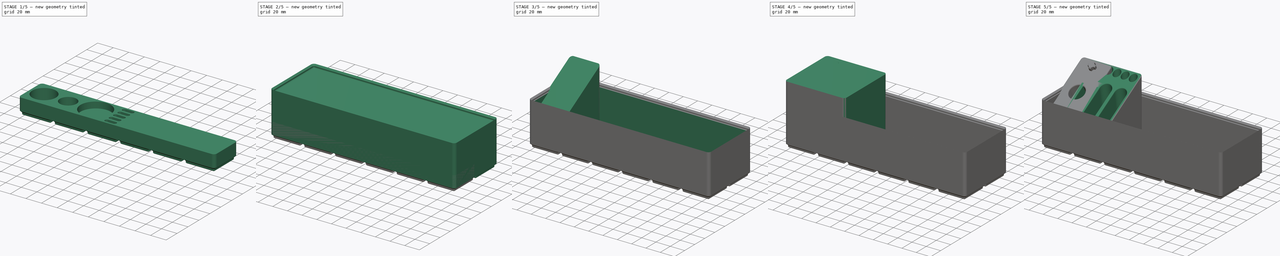
[diagram: build sequence overview — one tinted view per stage of 5, left to right]
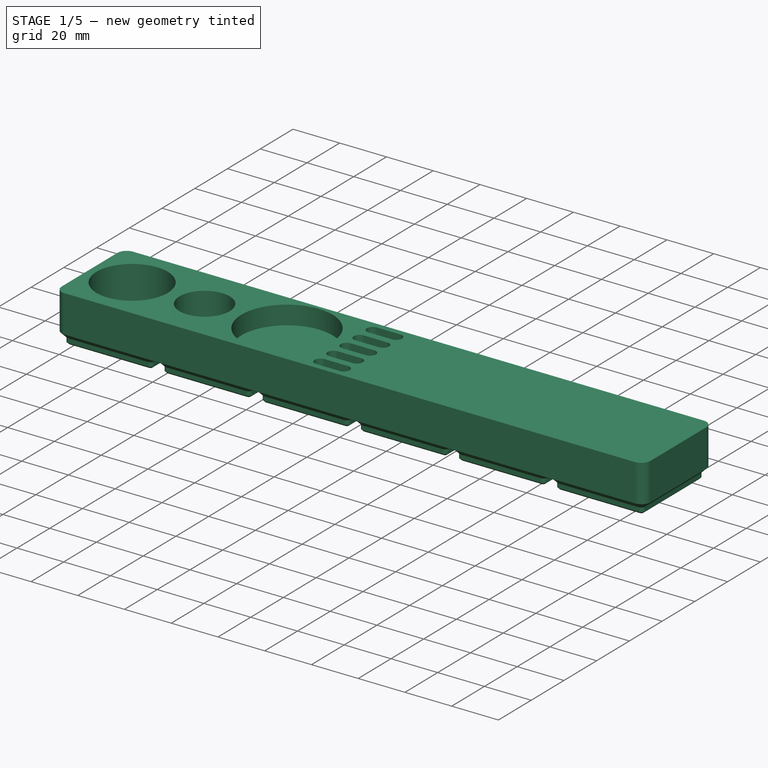
[diagram: stage 1 of 5 — iso view after this stage's code; geometry added in this stage tinted green]
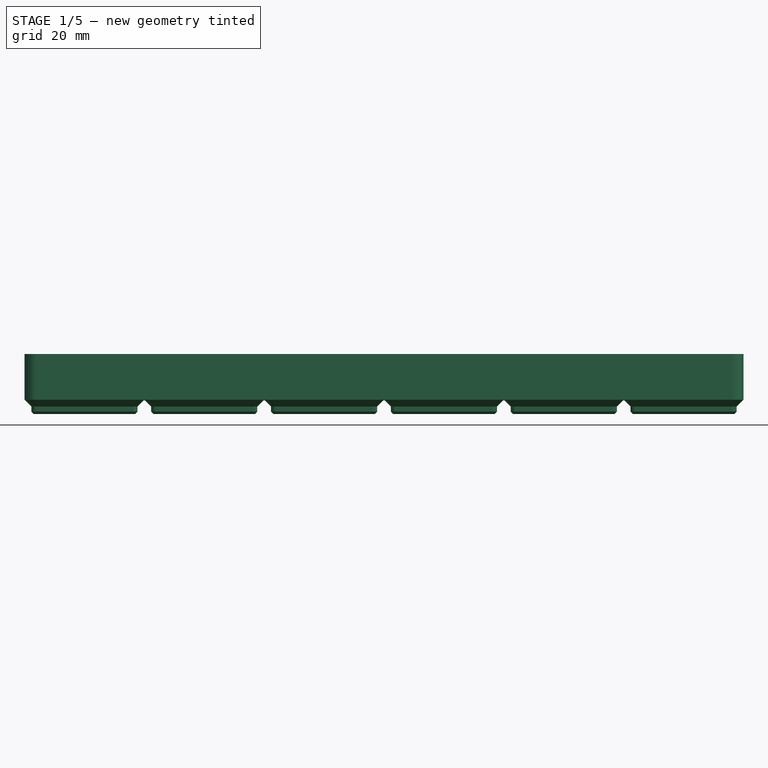
[diagram: stage 1 of 5 — front view after this stage's code; geometry added in this stage tinted green]
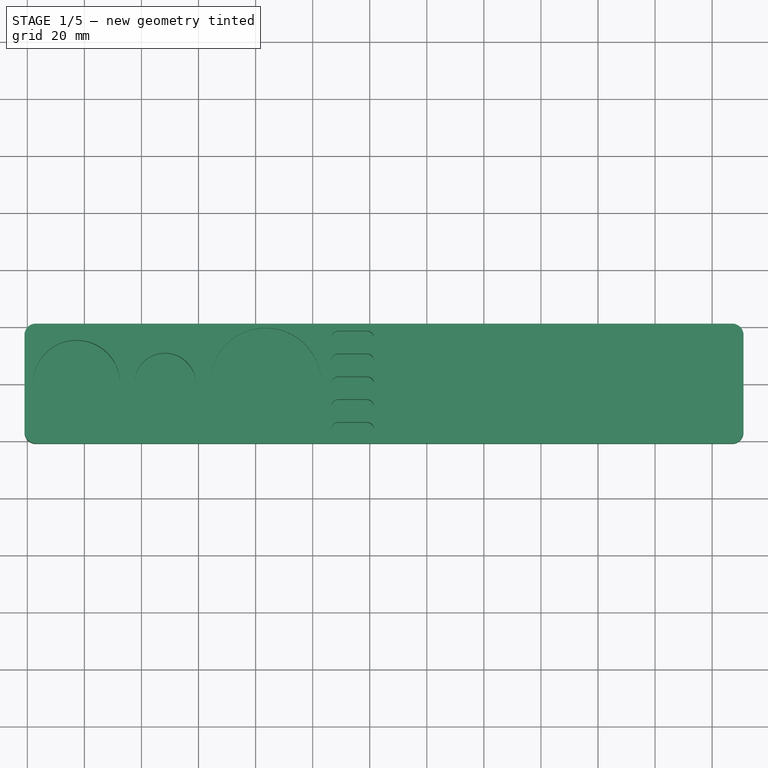
[diagram: stage 1 of 5 — top view after this stage's code; geometry added in this stage tinted green]
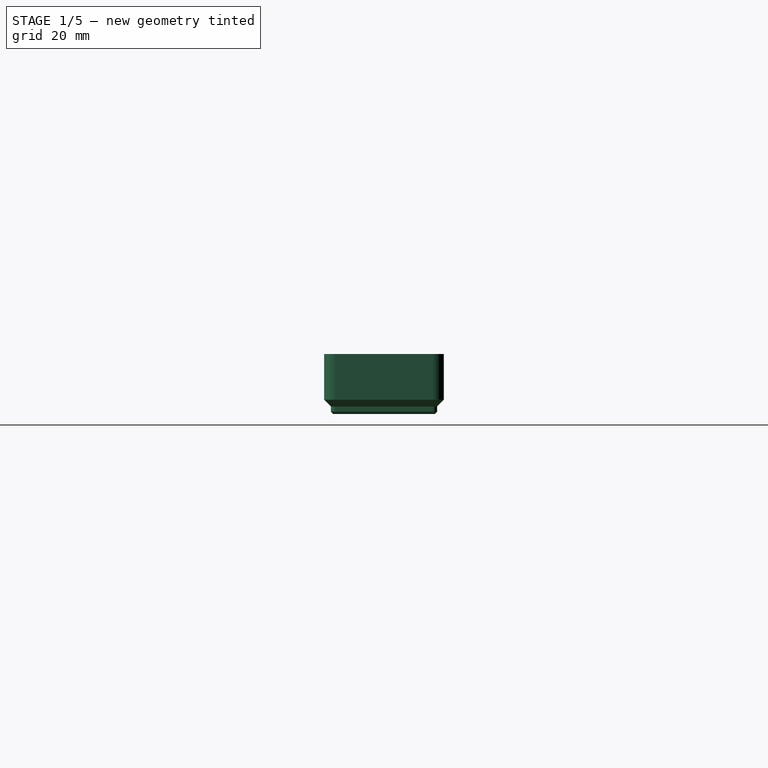
[diagram: stage 1 of 5 — right view after this stage's code; geometry added in this stage tinted green]
FCSTD DOCUMENT  (FreeCAD 1.1R20260223 (Git shallow))
Label: Gridfinity soldering tool rack
License: Creative Commons Attribution 4.0
LicenseURL: https://creativecommons.org/licenses/by/4.0/
objects: Sketcher::SketchObject×21, PartDesign::Pad×17, Part::Part2DObjectPython×12, PartDesign::Pocket×9, PartDesign::Fillet×6, PartDesign::Hole×5, PartDesign::Chamfer×5, App::Point×4, PartDesign::FeaturePython×4, PartDesign::Body×4, PartDesign::Draft×2, PartDesign::LinearPattern×2, PartDesign::SubtractiveLoft×1, PartDesign::SubShapeBinder×1, PartDesign::AdditiveLoft×1
note: 209 computed .brp shape members not serialized (recipe doc carries the construction recipe); baked Part::Feature solids carry a one-line shape summary decoded from their .brp

FEATURE [PartDesign::Body] Body  label="Tray"
  AllowCompound = false
  Depth = 2
  Group = -> [Sketch016,Pad009,Pad010,Pad011,LinearArray004,LinearArray005,Populate002,LatticePattern002,Sketch017,Pad012,Sketch002,Sketch003,Binder,AdditiveLoft,Chamfer002,Sketch004,Pocket003,Sketch015,Hole003,Chamfer003]
  Height = 8
  InnerDepth = 49
  Origin = -> Origin
  Placement = pos=(0,86.872,0) rot=(0,0,1;0rad)
  Tip = -> Chamfer003
  Width = 6
  expr: InnerDepth = (Height - 1) * 7
FEATURE [App::Point] Origin008
  Role = Origin
FEATURE [Sketcher::SketchObject] Sketch018
  ArcFitTolerance = 1e-06
  AttachmentSupport = -> [Origin009]
  ExternalTypes = [0]
  FullyConstrained = true
  MakeInternals = false
  MapMode = 5
  expr: Constraints[10] = href(<<Flux IPA and misc>>.Width) * 42 - 16
  expr: Constraints[11] = href(<<Flux IPA and misc>>.Depth) * 42 - 16
  sketch-geometry (4):
    g0: Circle CenterX=-13 CenterY=-13 CenterZ=0 NormalX=0 NormalY=0 NormalZ=1 AngleXU=0 Radius=3.25
    g1: Circle CenterX=-13 CenterY=13 CenterZ=0 NormalX=0 NormalY=0 NormalZ=1 AngleXU=0 Radius=3.25
    g2: Circle CenterX=223 CenterY=13 CenterZ=0 NormalX=0 NormalY=0 NormalZ=1 AngleXU=0 Radius=3.25
    g3: Circle CenterX=223 CenterY=-13 CenterZ=0 NormalX=0 NormalY=0 NormalZ=1 AngleXU=0 Radius=3.25
  constraints (12):
    c: Equal(g2,g1)
    c: Equal(g1,g0)
    c: Equal(g0,g3)
    c: Diameter(g0) = 6.5
    c: Horizontal(g1,g2)
    c: Horizontal(g0,g3)
    c: Vertical(g1,g0)
    c: Vertical(g2,g3)
    c: DistanceY(g0,g-1) = 13
    c: DistanceX(g0,g-1) = 13
    c: DistanceX(g0,g3) = 236
    c: DistanceY(g0,g1) = 26
FEATURE [Sketcher::SketchObject] Sketch019
  ArcFitTolerance = 1e-06
  AttachmentSupport = -> [XY_Plane003]
  ExternalTypes = [0]
  FullyConstrained = true
  MakeInternals = false
  MapMode = 5
  sketch-geometry (10):
    g0: LineSegment StartX=-17.8 StartY=17 StartZ=0 EndX=-17.8 EndY=-17 EndZ=0
    g1: LineSegment StartX=-17 StartY=-17.8 StartZ=0 EndX=17 EndY=-17.8 EndZ=0
    g2: LineSegment StartX=17.8 StartY=-17 StartZ=0 EndX=17.8 EndY=17 EndZ=0
    g3: LineSegment StartX=17 StartY=17.8 StartZ=0 EndX=-17 EndY=17.8 EndZ=0
    g4: ArcOfCircle CenterX=-17 CenterY=17 CenterZ=0 NormalX=0 NormalY=0 NormalZ=1 AngleXU=0 Radius=0.8 StartAngle=1.5708 EndAngle=3.14159
    g5: ArcOfCircle CenterX=-17 CenterY=-17 CenterZ=0 NormalX=0 NormalY=0 NormalZ=1 AngleXU=0 Radius=0.8 StartAngle=3.14159 EndAngle=4.71239
    g6: ArcOfCircle CenterX=17 CenterY=-17 CenterZ=0 NormalX=0 NormalY=0 NormalZ=1 AngleXU=0 Radius=0.8 StartAngle=4.71239 EndAngle=6.28319
    g7: ArcOfCircle CenterX=17 CenterY=17 CenterZ=0 NormalX=0 NormalY=0 NormalZ=1 AngleXU=0 Radius=0.8 StartAngle=9.76e-14 EndAngle=1.5708
    g8: GeomPoint [constr] X=-17.8 Y=17.8 Z=0
    g9: GeomPoint [constr] X=17.8 Y=-17.8 Z=0
  constraints (23):
    c: Tangent(g0,g4) = -1.5708
    c: Tangent(g0,g5) = -1.5708
    c: Tangent(g1,g5) = -1.5708
    c: Tangent(g1,g6) = -1.5708
    c: Tangent(g2,g6) = -1.5708
    c: Tangent(g2,g7) = -1.5708
    c: Tangent(g3,g7) = -1.5708
    c: Tangent(g3,g4) = -1.5708
    c: Vertical(g0)
    c: Vertical(g2)
    c: Horizontal(g1)
    c: Horizontal(g3)
    c: Equal(g4,g5)
    c: Equal(g5,g6)
    c: Equal(g6,g7)
    c: PointOnObject(g8,g0)
    c: PointOnObject(g8,g3)
    c: PointOnObject(g9,g1)
    c: PointOnObject(g9,g2)
    c: Symmetric(g8,g9,g-1)
    c: Equal(g3,g2)
    c: DistanceY(g9,g8) = 35.6
    c: Diameter(g5) = 1.6
FEATURE [PartDesign::Pad] Pad013
  Direction = (0,0,1)
  Length = 0.8
  Length2 = 10
  Profile = -> Sketch019
  ReferenceAxis = -> Sketch019 [N_Axis]
  SideType = 0
  Suppressed = false
  TaperAngle = 45
  Type = 0
  Type2 = 0
FEATURE [PartDesign::Pad] Pad014
  BaseFeature = -> Pad013
  Direction = (0,0,1)
  Length = 1.8
  Length2 = 10
  Profile = -> Pad013 [Edge3,Edge24,Edge22,Edge19,Edge16,Edge13,Edge10,Edge7]
  SideType = 0
  Suppressed = false
  Type = 0
  Type2 = 0
FEATURE [PartDesign::Pad] Pad015
  BaseFeature = -> Pad014
  Direction = (0,0,1)
  Length = 2.15
  Length2 = 10
  Profile = -> Pad014 [Edge16,Edge31,Edge32,Edge33,Edge34,Edge35,Edge36,Edge29]
  SideType = 0
  Suppressed = false
  TaperAngle = 45
  Type = 0
  Type2 = 0
FEATURE [Part::Part2DObjectPython] LinearArray006  label="LinearArrayX004"  # Draft 2D object (typed FeaturePython)
  Alignment = 0
  AttacherType = Attacher::AttachEngine3D
  CellStart = A1
  Count = 6
  Dir = (1,0,0)
  DirIsDriven = true
  DistributionLaw = 0
  DrivenProperty = 1
  EndInclusive = true
  ExposePlacement = false
  GeneratorMode = 1
  Link = -> Pad015
  LinkSubelement = Edge6
  MarkerShape = 1
  MarkerSize = 5
  NumElements = 6
  OrientMode = 1
  Point = (-17,-17.8,0)
  PointIsDriven = true
  Reverse = false
  SpanEnd = 34
  SpanStart = 0
  Step = 42
  SubLink = -> Pad015 [Edge6]
  Type = lattice2LinearArray.LinearArray
  VSGVersion = 1
  Values = 0.0 | 42.0 | 84.0 | 126.0 | 168.0 | 210.0
  ValuesSource = 2
  isLattice = 1
  expr: Count = href(<<Flux IPA and misc>>.Width)
FEATURE [Part::Part2DObjectPython] LinearArray007  label="LinearArrayY004"  # Draft 2D object (typed FeaturePython)
  Alignment = 0
  AttacherType = Attacher::AttachEngine3D
  CellStart = A1
  Count = 1
  Dir = (0,1,0)
  DirIsDriven = true
  DistributionLaw = 0
  DrivenProperty = 1
  EndInclusive = true
  ExposePlacement = false
  GeneratorMode = 1
  Link = -> Pad015
  LinkSubelement = Edge1
  MarkerShape = 1
  MarkerSize = 5
  NumElements = 1
  OrientMode = 1
  Point = (-17.8,-17,0)
  PointIsDriven = true
  Reverse = true
  SpanEnd = 34
  SpanStart = 0
  Step = 42
  SubLink = -> Pad015 [Edge1]
  Type = lattice2LinearArray.LinearArray
  VSGVersion = 1
  Values = 0.0
  ValuesSource = 2
  isLattice = 1
  expr: Count = href(<<Flux IPA and misc>>.Depth)
FEATURE [Part::Part2DObjectPython] Populate003  label="Gridfinity array004"  # Draft 2D object (typed FeaturePython)
  AttacherType = Attacher::AttachEngine3D
  Copying = 0
  ExposePlacement = false
  MarkerShape = 1
  MarkerSize = 5
  NumElements = 6
  Object = -> LinearArray006
  OutputCompounding = 0
  PlacementsTo = -> LinearArray007
  Referencing = 1
  Type = lattice2PopulateCopies.LatticePopulateCopies
  isLattice = 1
FEATURE [PartDesign::FeaturePython] LatticePattern003  label="Gridfinity foundation004"  # WARN: FeaturePython — macro-defined, semantics opaque (R4)
  AllowBaseFeature = true
  BaseFeature = -> Pad015
  Debug = false
  FeaturesToCopy = -> [Pad015,Pad013,Pad014]
  IgnoreUnsupported = false
  PlacementsTo = -> Populate003
  Referencing = 1
  Selfintersections = false
  SignOverride = 0
  SkipFirstInBody = false
  Suppressed = false
FEATURE [Sketcher::SketchObject] Sketch020
  ArcFitTolerance = 1e-06
  AttachmentSupport = -> [Pad015]
  ExternalTypes = [0]
  FullyConstrained = true
  MakeInternals = false
  MapMode = 5
  Placement = pos=(0,0,4.75) rot=(0,0,1;0rad)
  expr: Constraints[23] = href(<<Flux IPA and misc>>.Width) * 42
  expr: Constraints[24] = href(<<Flux IPA and misc>>.Depth) * 42
  sketch-geometry (8):
    g0: ArcOfCircle CenterX=-17 CenterY=-17 CenterZ=0 NormalX=0 NormalY=0 NormalZ=1 AngleXU=0 Radius=4 StartAngle=3.14159 EndAngle=4.71239
    g1: LineSegment StartX=-21 StartY=-17 StartZ=0 EndX=-21 EndY=17 EndZ=0
    g2: LineSegment StartX=-17 StartY=-21 StartZ=0 EndX=227 EndY=-21 EndZ=0
    g3: ArcOfCircle CenterX=-17 CenterY=17 CenterZ=0 NormalX=0 NormalY=0 NormalZ=1 AngleXU=0 Radius=4 StartAngle=1.5708 EndAngle=3.14159
    g4: ArcOfCircle CenterX=227 CenterY=-17 CenterZ=0 NormalX=0 NormalY=0 NormalZ=1 AngleXU=0 Radius=4 StartAngle=4.71239 EndAngle=6.28319
    g5: LineSegment StartX=-17 StartY=21 StartZ=0 EndX=227 EndY=21 EndZ=0
    g6: ArcOfCircle CenterX=227 CenterY=17 CenterZ=0 NormalX=0 NormalY=0 NormalZ=1 AngleXU=0 Radius=4 StartAngle=0 EndAngle=1.5708
    g7: LineSegment StartX=231 StartY=17 StartZ=0 EndX=231 EndY=-17 EndZ=0
  constraints (28):
    c: Vertical(g0,g0)
    c: Horizontal(g0,g0)
    c: Coincident(g1,g0)
    c: Vertical(g1)
    c: Coincident(g2,g0)
    c: Horizontal(g2)
    c: Coincident(g3,g1)
    c: Coincident(g4,g2)
    c: Vertical(g4,g2)
    c: Horizontal(g4,g4)
    c: Horizontal(g1,g3)
    c: Vertical(g3,g3)
    c: Equal(g0,g3)
    c: Equal(g0,g4)
    c: Coincident(g5,g3)
    c: Horizontal(g5)
    c: Vertical(g5,g2)
    c: Coincident(g6,g5)
    c: Vertical(g5,g6)
    c: Horizontal(g6,g6)
    c: Coincident(g7,g6)
    c: Coincident(g7,g4)
    c: Equal(g0,g6)
    c: DistanceX(g0,g4) = 252
    c: DistanceY(g2,g5) = 42
    c: DistanceX(g0,g-1) = 21
    c: DistanceY(g0,g-1) = 21
    c: Radius(g0) = 4
FEATURE [PartDesign::Pad] Pad016  label="Tray top003"
  BaseFeature = -> LatticePattern003
  Direction = (0,0,1)
  Length = 16.25
  Length2 = 10
  Profile = -> Sketch020
  ReferenceAxis = -> Sketch020 [N_Axis]
  Refine = true
  SideType = 0
  Suppressed = false
  Type = 0
  Type2 = 0
  expr: Length = href(<<Flux IPA and misc>>.Height) * 7 - 4.75
FEATURE [PartDesign::Hole] Hole004
  BaseFeature = -> Pad016
  BaseProfileType = 7
  CustomThreadClearance = 0
  Depth = 2
  DepthType = 0
  Diameter = 6.5
  DrillForDepth = false
  DrillPoint = 1
  DrillPointAngle = 90
  HoleCutCountersinkAngle = 90
  HoleCutCustomValues = false
  HoleCutDepth = 0
  HoleCutDiameter = 0
  HoleCutType = 0
  ModelThread = false
  Profile = -> Sketch018
  Refine = true
  Reversed = true
  Suppressed = false
  Tapered = false
  TaperedAngle = 90
  ThreadClass = 0
  ThreadDepth = 2
  ThreadDepthType = 0
  ThreadDiameter = 6.5
  ThreadDirection = 0
  ThreadFit = 0
  ThreadSize = 0
  ThreadType = 0
  Threaded = false
  UseCustomThreadClearance = false
FEATURE [PartDesign::Chamfer] Chamfer005
  Angle = 45
  Base = -> Hole004 [Edge14]
  BaseFeature = -> Hole004
  ChamferType = 0
  FlipDirection = false
  Size = 0.249
  Size2 = 1
  SupportTransform = false
  Suppressed = false
  UseAllEdges = false
FEATURE [Sketcher::SketchObject] Sketch021
  ArcFitTolerance = 1e-06
  AttachmentSupport = -> [Chamfer005]
  ExternalGeometry = -> [Chamfer005]
  ExternalTypes = [0,0]
  FullyConstrained = true
  MakeInternals = false
  MapMode = 5
  Placement = pos=(0,0,21) rot=(0,0,1;0rad)
  sketch-geometry (39):
    g0: Circle CenterX=-2.75 CenterY=-1e-16 CenterZ=0 NormalX=0 NormalY=0 NormalZ=1 AngleXU=0 Radius=15.25
    g1: LineSegment [constr] StartX=-21 StartY=-1e-16 StartZ=0 EndX=231 EndY=-1e-16 EndZ=0
    g2: Circle CenterX=28.25 CenterY=-1e-16 CenterZ=0 NormalX=0 NormalY=0 NormalZ=1 AngleXU=0 Radius=10.75
    g3: Circle CenterX=63.5 CenterY=-1e-16 CenterZ=0 NormalX=0 NormalY=0 NormalZ=1 AngleXU=0 Radius=19.5
    g4: LineSegment StartX=105 StartY=17 StartZ=0 EndX=105 EndY=-17 EndZ=0
    g5: LineSegment StartX=109 StartY=-21 StartZ=0 EndX=227 EndY=-21 EndZ=0
    g6: LineSegment StartX=231 StartY=-17 StartZ=0 EndX=231 EndY=17 EndZ=0
    g7: LineSegment StartX=227 StartY=21 StartZ=0 EndX=109 EndY=21 EndZ=0
    g8: ArcOfCircle CenterX=109 CenterY=17 CenterZ=0 NormalX=0 NormalY=0 NormalZ=1 AngleXU=0 Radius=4 StartAngle=1.5708 EndAngle=3.14159
    g9: ArcOfCircle CenterX=109 CenterY=-17 CenterZ=0 NormalX=0 NormalY=0 NormalZ=1 AngleXU=0 Radius=4 StartAngle=3.14159 EndAngle=4.71239
    g10: ArcOfCircle CenterX=227 CenterY=-17 CenterZ=0 NormalX=0 NormalY=0 NormalZ=1 AngleXU=0 Radius=4 StartAngle=4.71239 EndAngle=6.28319
    g11: ArcOfCircle CenterX=227 CenterY=17 CenterZ=0 NormalX=0 NormalY=0 NormalZ=1 AngleXU=0 Radius=4 StartAngle=0 EndAngle=1.5708
    g12: GeomPoint [constr] X=105 Y=21 Z=0
    g13: GeomPoint [constr] X=231 Y=-21 Z=0
    g14: GeomPoint [constr] X=168 Y=-1e-16 Z=0
    g15: ArcOfCircle CenterX=89 CenterY=16 CenterZ=0 NormalX=0 NormalY=0 NormalZ=1 AngleXU=0 Radius=2.5 StartAngle=1.5708 EndAngle=4.71239
    g16: ArcOfCircle CenterX=99 CenterY=16 CenterZ=0 NormalX=0 NormalY=0 NormalZ=1 AngleXU=0 Radius=2.5 StartAngle=4.71239 EndAngle=7.85398
    g17: LineSegment StartX=89 StartY=18.5 StartZ=0 EndX=99 EndY=18.5 EndZ=0
    g18: LineSegment StartX=89 StartY=13.5 StartZ=0 EndX=99 EndY=13.5 EndZ=0
    g19: GeomPoint [constr] X=83 Y=-1e-16 Z=0
    g20: GeomPoint [constr] X=105 Y=-1e-16 Z=0
    g21: GeomPoint [constr] X=94 Y=-1e-16 Z=0
    g22: GeomPoint [constr] X=94 Y=16 Z=0
    g23: ArcOfCircle CenterX=89 CenterY=8 CenterZ=0 NormalX=0 NormalY=0 NormalZ=1 AngleXU=0 Radius=2.5 StartAngle=1.5708 EndAngle=4.71239
    g24: ArcOfCircle CenterX=99 CenterY=8 CenterZ=0 NormalX=0 NormalY=0 NormalZ=1 AngleXU=0 Radius=2.5 StartAngle=4.71239 EndAngle=7.85398
    g25: LineSegment StartX=89 StartY=10.5 StartZ=0 EndX=99 EndY=10.5 EndZ=0
    g26: LineSegment StartX=89 StartY=5.5 StartZ=0 EndX=99 EndY=5.5 EndZ=0
    g27: ArcOfCircle CenterX=89 CenterY=-1e-16 CenterZ=0 NormalX=0 NormalY=0 NormalZ=1 AngleXU=0 Radius=2.5 StartAngle=1.5708 EndAngle=4.71239
    g28: ArcOfCircle CenterX=99 CenterY=0 CenterZ=0 NormalX=0 NormalY=0 NormalZ=1 AngleXU=0 Radius=2.5 StartAngle=4.71239 EndAngle=7.85398
    g29: LineSegment StartX=89 StartY=2.5 StartZ=0 EndX=99 EndY=2.5 EndZ=0
    g30: LineSegment StartX=89 StartY=-2.5 StartZ=0 EndX=99 EndY=-2.5 EndZ=0
    g31: ArcOfCircle CenterX=89 CenterY=-8 CenterZ=0 NormalX=0 NormalY=0 NormalZ=1 AngleXU=0 Radius=2.5 StartAngle=1.5708 EndAngle=4.71239
    g32: ArcOfCircle CenterX=99 CenterY=-8 CenterZ=0 NormalX=0 NormalY=0 NormalZ=1 AngleXU=0 Radius=2.5 StartAngle=4.71239 EndAngle=7.85398
    g33: LineSegment StartX=89 StartY=-5.5 StartZ=0 EndX=99 EndY=-5.5 EndZ=0
    g34: LineSegment StartX=89 StartY=-10.5 StartZ=0 EndX=99 EndY=-10.5 EndZ=0
    g35: ArcOfCircle CenterX=89 CenterY=-16 CenterZ=0 NormalX=0 NormalY=0 NormalZ=1 AngleXU=0 Radius=2.5 StartAngle=1.5708 EndAngle=4.71239
    g36: ArcOfCircle CenterX=99 CenterY=-16 CenterZ=0 NormalX=0 NormalY=0 NormalZ=1 AngleXU=0 Radius=2.5 StartAngle=4.71239 EndAngle=7.85398
    g37: LineSegment StartX=89 StartY=-13.5 StartZ=0 EndX=99 EndY=-13.5 EndZ=0
    g38: LineSegment StartX=89 StartY=-18.5 StartZ=0 EndX=99 EndY=-18.5 EndZ=0
  constraints (93):
    c: PointOnObject(g1,g-3)
    c: Horizontal(g1)
    c: Symmetric(g-4,g-4,g1)
    c: PointOnObject(g0,g1)
    c: Diameter(g0) = 30.5
    c: Diameter(g2) = 21.5
    c: PointOnObject(g2,g1)
    c: Diameter(g3) = 39
    c: PointOnObject(g3,g1)
    c: Distance(g1,g0) = 3
    c: Distance(g0,g2) = 5
    c: Distance(g2,g3) = 5
    c: Tangent(g4,g8) = -1.5708
    c: Tangent(g4,g9) = -1.5708
    c: Tangent(g5,g9) = -1.5708
    c: Tangent(g5,g10) = -1.5708
    c: Tangent(g6,g10) = -1.5708
    c: Tangent(g6,g11) = -1.5708
    c: Tangent(g7,g11) = -1.5708
    c: Tangent(g7,g8) = -1.5708
    c: Vertical(g4)
    c: Vertical(g6)
    c: Horizontal(g5)
    c: Horizontal(g7)
    c: Equal(g8,g9)
    c: Equal(g9,g10)
    c: Equal(g10,g11)
    c: PointOnObject(g12,g4)
    c: PointOnObject(g12,g7)
    c: PointOnObject(g13,g5)
    c: PointOnObject(g13,g6)
    c: Radius(g9) = 4
    c: Symmetric(g12,g13,g14)
    c: PointOnObject(g14,g1)
    c: DistanceY(g5,g7) = 42
    c: DistanceX(g4,g6) = 126
    c: PointOnObject(g6,g-4)
    c: Tangent(g15,g17) = 1.5708
    c: Tangent(g15,g18) = -1.5708
    c: Tangent(g16,g17) = 1.5708
    c: Tangent(g16,g18) = -1.5708
    c: Equal(g15,g16)
    c: Distance(g15,g16) = 10
    c: Radius(g15) = 2.5
    c: Horizontal(g17)
    c: PointOnObject(g19,g3)
    c: PointOnObject(g20,g4)
    c: PointOnObject(g20,g1)
    c: PointOnObject(g19,g1)
    c: Symmetric(g19,g20,g21)
    c: Symmetric(g15,g16,g22)
    c: Vertical(g22,g21)
    c: Tangent(g23,g25) = 1.5708
    c: Tangent(g23,g26) = -1.5708
    c: Tangent(g24,g25) = 1.5708
    c: Tangent(g24,g26) = -1.5708
    c: Equal(g23,g24)
    c: Horizontal(g25)
    c: Equal(g24,g16)
    c: Vertical(g15,g23)
    c: Vertical(g16,g24)
    c: DistanceY(g23,g15) = 3
    c: Tangent(g27,g29) = 1.5708
    c: Tangent(g27,g30) = -1.5708
    c: Tangent(g28,g29) = 1.5708
    c: Tangent(g28,g30) = -1.5708
    c: Equal(g27,g28)
    c: Horizontal(g29)
    c: Equal(g24,g28)
    c: Vertical(g23,g27)
    c: Vertical(g24,g28)
    c: DistanceY(g27,g23) = 3
    c: PointOnObject(g27,g1)
    c: Tangent(g31,g33) = 1.5708
    c: Tangent(g31,g34) = -1.5708
    c: Tangent(g32,g33) = 1.5708
    c: Tangent(g32,g34) = -1.5708
    c: Equal(g31,g32)
    c: Horizontal(g33)
    c: Tangent(g35,g37) = 1.5708
    c: Tangent(g35,g38) = -1.5708
    c: Tangent(g36,g37) = 1.5708
    c: Tangent(g36,g38) = -1.5708
    c: Equal(g35,g36)
    c: Horizontal(g37)
    c: Equal(g27,g31)
    c: Equal(g31,g35)
    c: Vertical(g28,g32)
    c: Vertical(g32,g36)
    c: Vertical(g27,g31)
    c: Vertical(g31,g35)
    c: DistanceY(g31,g27) = 3
    c: DistanceY(g35,g31) = 3
FEATURE [PartDesign::Pocket] Pocket004
  BaseFeature = -> Chamfer005
  Direction = (0,0,-1)
  Length = 16
  Length2 = 5
  Profile = -> Sketch021 [Edge1,Edge2]
  ReferenceAxis = -> Sketch021 [N_Axis]
  SideType = 0
  Suppressed = false
  Type = 0
  Type2 = 0
FEATURE [PartDesign::Pocket] Pocket005
  BaseFeature = -> Pocket004
  Direction = (0,0,-1)
  Length = 8
  Length2 = 5
  Profile = -> Sketch021 [Edge3]
  ReferenceAxis = -> Sketch021 [N_Axis]
  SideType = 0
  Suppressed = false
  Type = 0
  Type2 = 0
FEATURE [PartDesign::Pocket] Pocket006
  BaseFeature = -> Pocket005
  Direction = (0,0,-1)
  Length = 17
  Length2 = 5
  Profile = -> Sketch021 [Edge12,Edge15,Edge14,Edge13,Edge16,Edge19,Edge18,Edge22,Edge17,Edge23,Edge20,Edge21,Edge27,Edge26,Edge25,Edge24,Edge31,Edge30,Edge29,Edge28]
  ReferenceAxis = -> Sketch021 [N_Axis]
  SideType = 0
  Suppressed = false
  Type = 0
  Type2 = 0
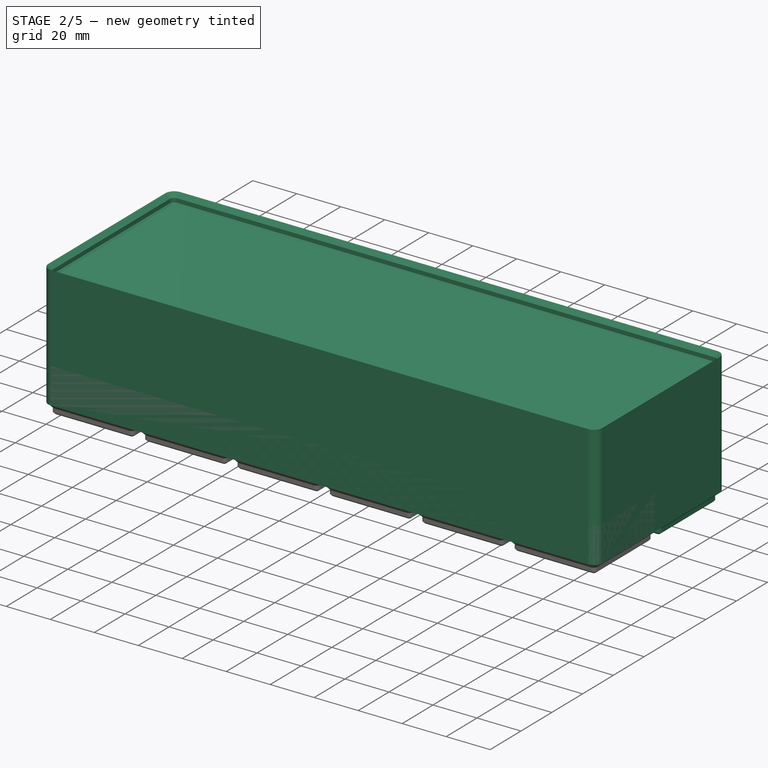
[diagram: stage 2 of 5 — iso view after this stage's code; geometry added in this stage tinted green]
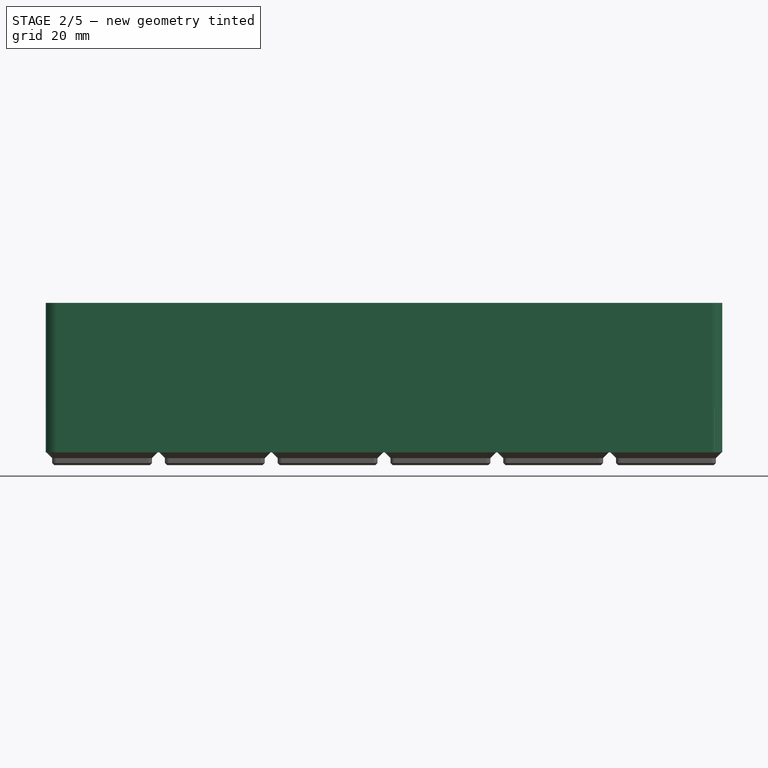
[diagram: stage 2 of 5 — front view after this stage's code; geometry added in this stage tinted green]
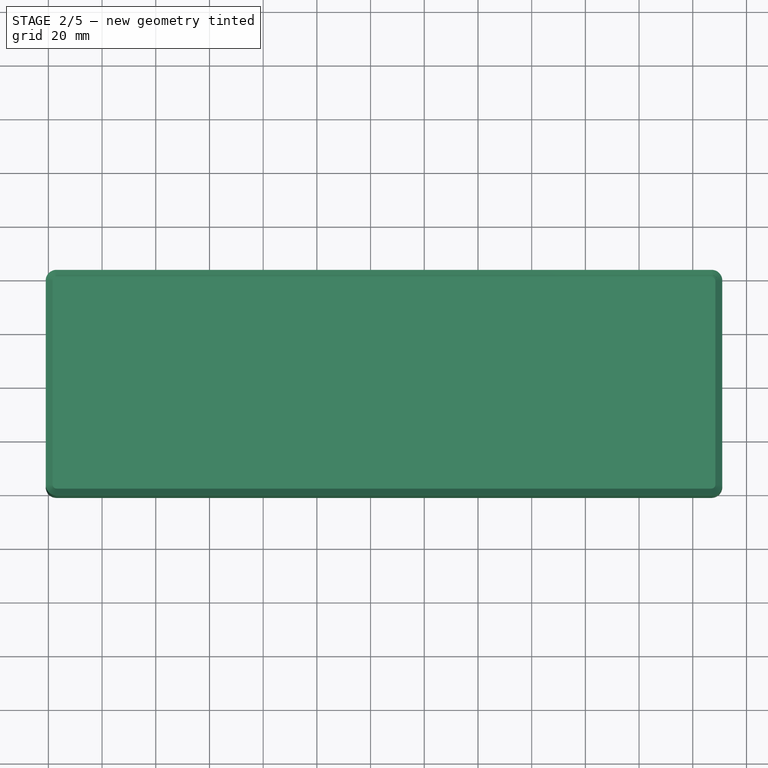
[diagram: stage 2 of 5 — top view after this stage's code; geometry added in this stage tinted green]
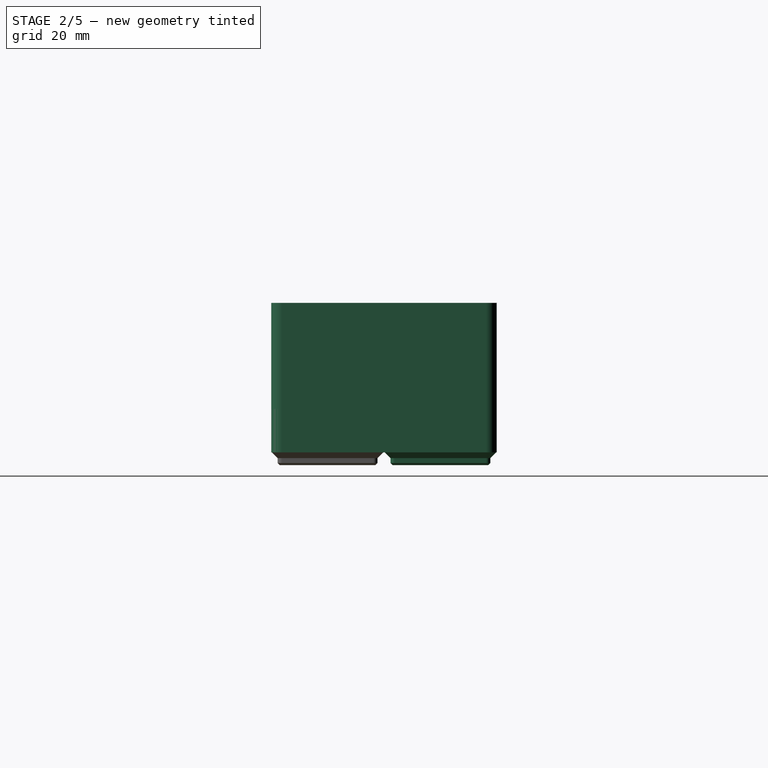
[diagram: stage 2 of 5 — right view after this stage's code; geometry added in this stage tinted green]
FEATURE [PartDesign::Body] Body002  label="Desolder pump and wick"
  AllowCompound = false
  Depth = 2
  Group = -> [Sketch011,Pad004,Pad005,Pad006,LinearArray002,LinearArray003,Populate001,LatticePattern001,Sketch012,Pad007,Sketch010,Hole002,Draft001,Sketch013,Pocket,Pocket001,Pocket002,Fillet003,Sketch014,Pad008,Chamfer001]
  Height = 12
  Origin = -> Origin006
  Placement = pos=(89.985,0,0) rot=(0,0,1;0rad)
  Tip = -> Chamfer001
  Width = 1
FEATURE [App::Point] Origin007  label="Origin"
  Role = Origin
FEATURE [Sketcher::SketchObject] Sketch015
  ArcFitTolerance = 1e-06
  AttachmentSupport = -> [Origin]
  ExternalTypes = [0]
  FullyConstrained = true
  MakeInternals = false
  MapMode = 5
  expr: Constraints[10] = href(<<Tray>>.Width) * 42 - 16
  expr: Constraints[11] = href(<<Tray>>.Depth) * 42 - 16
  sketch-geometry (4):
    g0: Circle CenterX=-13 CenterY=-13 CenterZ=0 NormalX=0 NormalY=0 NormalZ=1 AngleXU=0 Radius=3.25
    g1: Circle CenterX=-13 CenterY=55 CenterZ=0 NormalX=0 NormalY=0 NormalZ=1 AngleXU=0 Radius=3.25
    g2: Circle CenterX=223 CenterY=55 CenterZ=0 NormalX=0 NormalY=0 NormalZ=1 AngleXU=0 Radius=3.25
    g3: Circle CenterX=223 CenterY=-13 CenterZ=0 NormalX=0 NormalY=0 NormalZ=1 AngleXU=0 Radius=3.25
  constraints (12):
    c: Equal(g2,g1)
    c: Equal(g1,g0)
    c: Equal(g0,g3)
    c: Diameter(g0) = 6.5
    c: Horizontal(g1,g2)
    c: Horizontal(g0,g3)
    c: Vertical(g1,g0)
    c: Vertical(g2,g3)
    c: DistanceY(g0,g-1) = 13
    c: DistanceX(g0,g-1) = 13
    c: DistanceX(g0,g3) = 236
    c: DistanceY(g0,g1) = 68
FEATURE [Sketcher::SketchObject] Sketch016
  ArcFitTolerance = 1e-06
  AttachmentSupport = -> [XY_Plane]
  ExternalTypes = [0]
  FullyConstrained = true
  MakeInternals = false
  MapMode = 5
  sketch-geometry (10):
    g0: LineSegment StartX=-17.8 StartY=17 StartZ=0 EndX=-17.8 EndY=-17 EndZ=0
    g1: LineSegment StartX=-17 StartY=-17.8 StartZ=0 EndX=17 EndY=-17.8 EndZ=0
    g2: LineSegment StartX=17.8 StartY=-17 StartZ=0 EndX=17.8 EndY=17 EndZ=0
    g3: LineSegment StartX=17 StartY=17.8 StartZ=0 EndX=-17 EndY=17.8 EndZ=0
    g4: ArcOfCircle CenterX=-17 CenterY=17 CenterZ=0 NormalX=0 NormalY=0 NormalZ=1 AngleXU=0 Radius=0.8 StartAngle=1.5708 EndAngle=3.14159
    g5: ArcOfCircle CenterX=-17 CenterY=-17 CenterZ=0 NormalX=0 NormalY=0 NormalZ=1 AngleXU=0 Radius=0.8 StartAngle=3.14159 EndAngle=4.71239
    g6: ArcOfCircle CenterX=17 CenterY=-17 CenterZ=0 NormalX=0 NormalY=0 NormalZ=1 AngleXU=0 Radius=0.8 StartAngle=4.71239 EndAngle=6.28319
    g7: ArcOfCircle CenterX=17 CenterY=17 CenterZ=0 NormalX=0 NormalY=0 NormalZ=1 AngleXU=0 Radius=0.8 StartAngle=9.76e-14 EndAngle=1.5708
    g8: GeomPoint [constr] X=-17.8 Y=17.8 Z=0
    g9: GeomPoint [constr] X=17.8 Y=-17.8 Z=0
  constraints (23):
    c: Tangent(g0,g4) = -1.5708
    c: Tangent(g0,g5) = -1.5708
    c: Tangent(g1,g5) = -1.5708
    c: Tangent(g1,g6) = -1.5708
    c: Tangent(g2,g6) = -1.5708
    c: Tangent(g2,g7) = -1.5708
    c: Tangent(g3,g7) = -1.5708
    c: Tangent(g3,g4) = -1.5708
    c: Vertical(g0)
    c: Vertical(g2)
    c: Horizontal(g1)
    c: Horizontal(g3)
    c: Equal(g4,g5)
    c: Equal(g5,g6)
    c: Equal(g6,g7)
    c: PointOnObject(g8,g0)
    c: PointOnObject(g8,g3)
    c: PointOnObject(g9,g1)
    c: PointOnObject(g9,g2)
    c: Symmetric(g8,g9,g-1)
    c: Equal(g3,g2)
    c: DistanceY(g9,g8) = 35.6
    c: Diameter(g5) = 1.6
FEATURE [PartDesign::Pad] Pad009
  Direction = (0,0,1)
  Length = 0.8
  Length2 = 10
  Profile = -> Sketch016
  ReferenceAxis = -> Sketch016 [N_Axis]
  SideType = 0
  Suppressed = false
  TaperAngle = 45
  Type = 0
  Type2 = 0
FEATURE [PartDesign::Pad] Pad010
  BaseFeature = -> Pad009
  Direction = (0,0,1)
  Length = 1.8
  Length2 = 10
  Profile = -> Pad009 [Edge3,Edge24,Edge22,Edge19,Edge16,Edge13,Edge10,Edge7]
  SideType = 0
  Suppressed = false
  Type = 0
  Type2 = 0
FEATURE [PartDesign::Pad] Pad011
  BaseFeature = -> Pad010
  Direction = (0,0,1)
  Length = 2.15
  Length2 = 10
  Profile = -> Pad010 [Edge16,Edge31,Edge32,Edge33,Edge34,Edge35,Edge36,Edge29]
  SideType = 0
  Suppressed = false
  TaperAngle = 45
  Type = 0
  Type2 = 0
FEATURE [Sketcher::SketchObject] Sketch017
  ArcFitTolerance = 1e-06
  AttachmentSupport = -> [Pad011]
  ExternalTypes = [0]
  FullyConstrained = true
  MakeInternals = false
  MapMode = 5
  Placement = pos=(0,0,4.75) rot=(0,0,1;0rad)
  expr: Constraints[23] = href(<<Tray>>.Width) * 42
  expr: Constraints[24] = href(<<Tray>>.Depth) * 42
  sketch-geometry (8):
    g0: ArcOfCircle CenterX=-17 CenterY=-17 CenterZ=0 NormalX=0 NormalY=0 NormalZ=1 AngleXU=0 Radius=4 StartAngle=3.14159 EndAngle=4.71239
    g1: LineSegment StartX=-21 StartY=-17 StartZ=0 EndX=-21 EndY=59 EndZ=0
    g2: LineSegment StartX=-17 StartY=-21 StartZ=0 EndX=227 EndY=-21 EndZ=0
    g3: ArcOfCircle CenterX=-17 CenterY=59 CenterZ=0 NormalX=0 NormalY=0 NormalZ=1 AngleXU=0 Radius=4 StartAngle=1.5708 EndAngle=3.14159
    g4: ArcOfCircle CenterX=227 CenterY=-17 CenterZ=0 NormalX=0 NormalY=0 NormalZ=1 AngleXU=0 Radius=4 StartAngle=4.71239 EndAngle=6.28319
    g5: LineSegment StartX=-17 StartY=63 StartZ=0 EndX=227 EndY=63 EndZ=0
    g6: ArcOfCircle CenterX=227 CenterY=59 CenterZ=0 NormalX=0 NormalY=0 NormalZ=1 AngleXU=0 Radius=4 StartAngle=0 EndAngle=1.5708
    g7: LineSegment StartX=231 StartY=59 StartZ=0 EndX=231 EndY=-17 EndZ=0
  constraints (28):
    c: Vertical(g0,g0)
    c: Horizontal(g0,g0)
    c: Coincident(g1,g0)
    c: Vertical(g1)
    c: Coincident(g2,g0)
    c: Horizontal(g2)
    c: Coincident(g3,g1)
    c: Coincident(g4,g2)
    c: Vertical(g4,g2)
    c: Horizontal(g4,g4)
    c: Horizontal(g1,g3)
    c: Vertical(g3,g3)
    c: Equal(g0,g3)
    c: Equal(g0,g4)
    c: Coincident(g5,g3)
    c: Horizontal(g5)
    c: Vertical(g5,g2)
    c: Coincident(g6,g5)
    c: Vertical(g5,g6)
    c: Horizontal(g6,g6)
    c: Coincident(g7,g6)
    c: Coincident(g7,g4)
    c: Equal(g0,g6)
    c: DistanceX(g0,g4) = 252
    c: DistanceY(g2,g5) = 84
    c: DistanceX(g0,g-1) = 21
    c: DistanceY(g0,g-1) = 21
    c: Radius(g0) = 4
FEATURE [Part::Part2DObjectPython] LinearArray004  label="LinearArrayX003"  # Draft 2D object (typed FeaturePython)
  Alignment = 0
  AttacherType = Attacher::AttachEngine3D
  CellStart = A1
  Count = 6
  Dir = (1,0,0)
  DirIsDriven = true
  DistributionLaw = 0
  DrivenProperty = 1
  EndInclusive = true
  ExposePlacement = false
  GeneratorMode = 1
  Link = -> Pad011
  LinkSubelement = Edge6
  MarkerShape = 1
  MarkerSize = 5
  NumElements = 6
  OrientMode = 1
  Point = (-17,-17.8,0)
  PointIsDriven = true
  Reverse = false
  SpanEnd = 34
  SpanStart = 0
  Step = 42
  SubLink = -> Pad011 [Edge6]
  Type = lattice2LinearArray.LinearArray
  VSGVersion = 1
  Values = 0.0 | 42.0 | 84.0 | 126.0 | 168.0 | 210.0
  ValuesSource = 2
  isLattice = 1
  expr: Count = href(<<Tray>>.Width)
FEATURE [Part::Part2DObjectPython] LinearArray005  label="LinearArrayY003"  # Draft 2D object (typed FeaturePython)
  Alignment = 0
  AttacherType = Attacher::AttachEngine3D
  CellStart = A1
  Count = 2
  Dir = (0,1,0)
  DirIsDriven = true
  DistributionLaw = 0
  DrivenProperty = 1
  EndInclusive = true
  ExposePlacement = false
  GeneratorMode = 1
  Link = -> Pad011
  LinkSubelement = Edge1
  MarkerShape = 1
  MarkerSize = 5
  NumElements = 2
  OrientMode = 1
  Point = (-17.8,-17,0)
  PointIsDriven = true
  Reverse = true
  SpanEnd = 34
  SpanStart = 0
  Step = 42
  SubLink = -> Pad011 [Edge1]
  Type = lattice2LinearArray.LinearArray
  VSGVersion = 1
  Values = 0.0 | 42.0
  ValuesSource = 2
  isLattice = 1
  expr: Count = href(<<Tray>>.Depth)
FEATURE [Part::Part2DObjectPython] Populate002  label="Gridfinity array003"  # Draft 2D object (typed FeaturePython)
  AttacherType = Attacher::AttachEngine3D
  Copying = 0
  ExposePlacement = false
  MarkerShape = 1
  MarkerSize = 5
  NumElements = 12
  Object = -> LinearArray004
  OutputCompounding = 0
  PlacementsTo = -> LinearArray005
  Referencing = 1
  Type = lattice2PopulateCopies.LatticePopulateCopies
  isLattice = 1
FEATURE [PartDesign::FeaturePython] LatticePattern002  label="Gridfinity foundation003"  # WARN: FeaturePython — macro-defined, semantics opaque (R4)
  AllowBaseFeature = true
  BaseFeature = -> Pad011
  Debug = false
  FeaturesToCopy = -> [Pad011,Pad009,Pad010]
  IgnoreUnsupported = false
  PlacementsTo = -> Populate002
  Referencing = 1
  Selfintersections = false
  SignOverride = 0
  SkipFirstInBody = false
  Suppressed = false
FEATURE [PartDesign::Pad] Pad012  label="Tray top002"
  BaseFeature = -> LatticePattern002
  Direction = (0,0,1)
  Length = 51.25
  Length2 = 10
  Profile = -> Sketch017
  ReferenceAxis = -> Sketch017 [N_Axis]
  Refine = true
  SideType = 0
  Suppressed = false
  Type = 0
  Type2 = 0
  expr: Length = href(<<Tray>>.Height) * 7 - 4.75
FEATURE [Sketcher::SketchObject] Sketch003
  ArcFitTolerance = 1e-06
  AttachmentOffset = pos=(0,0,0.7) rot=(0,0,1;0rad)
  AttachmentSupport = -> [Pad012]
  ExternalGeometry = -> [Pad012]
  ExternalTypes = [0]
  FullyConstrained = true
  MakeInternals = false
  MapMode = 5
  Placement = pos=(0,0,56.7) rot=(0,0,1;0rad)
  sketch-geometry (16):
    g0: ArcOfCircle CenterX=-17 CenterY=59 CenterZ=0 NormalX=0 NormalY=0 NormalZ=1 AngleXU=0 Radius=4 StartAngle=1.5708 EndAngle=3.14159
    g1: ArcOfCircle CenterX=227 CenterY=59 CenterZ=0 NormalX=0 NormalY=0 NormalZ=1 AngleXU=0 Radius=4 StartAngle=0 EndAngle=1.5708
    g2: ArcOfCircle CenterX=227 CenterY=-17 CenterZ=0 NormalX=0 NormalY=0 NormalZ=1 AngleXU=0 Radius=4 StartAngle=4.71239 EndAngle=6.28319
    g3: ArcOfCircle CenterX=-17 CenterY=-17 CenterZ=0 NormalX=0 NormalY=0 NormalZ=1 AngleXU=0 Radius=4 StartAngle=3.14159 EndAngle=4.71239
    g4: LineSegment StartX=-17 StartY=63 StartZ=0 EndX=227 EndY=63 EndZ=0
    g5: LineSegment StartX=231 StartY=59 StartZ=0 EndX=231 EndY=-17 EndZ=0
    g6: LineSegment StartX=227 StartY=-21 StartZ=0 EndX=-17 EndY=-21 EndZ=0
    g7: LineSegment StartX=-21 StartY=-17 StartZ=0 EndX=-21 EndY=59 EndZ=0
    g8: LineSegment StartX=-19.1 StartY=-17 StartZ=0 EndX=-19.1 EndY=59 EndZ=0
    g9: ArcOfCircle CenterX=-17 CenterY=59 CenterZ=0 NormalX=0 NormalY=0 NormalZ=1 AngleXU=0 Radius=2.1 StartAngle=1.5708 EndAngle=3.14159
    g10: LineSegment StartX=-17 StartY=61.1 StartZ=0 EndX=227 EndY=61.1 EndZ=0
    g11: ArcOfCircle CenterX=227 CenterY=59 CenterZ=0 NormalX=0 NormalY=0 NormalZ=1 AngleXU=0 Radius=2.1 StartAngle=1e-15 EndAngle=1.5708
    g12: LineSegment StartX=229.1 StartY=59 StartZ=0 EndX=229.1 EndY=-17 EndZ=0
    g13: ArcOfCircle CenterX=227 CenterY=-17 CenterZ=0 NormalX=0 NormalY=0 NormalZ=1 AngleXU=0 Radius=2.1 StartAngle=4.71239 EndAngle=6.28319
    g14: LineSegment StartX=227 StartY=-19.1 StartZ=0 EndX=-17 EndY=-19.1 EndZ=0
    g15: ArcOfCircle CenterX=-17 CenterY=-17 CenterZ=0 NormalX=0 NormalY=0 NormalZ=1 AngleXU=0 Radius=2.1 StartAngle=3.14159 EndAngle=4.71239
  constraints (39):
    c: Horizontal(g3,g3)
    c: Horizontal(g3,g2)
    c: Horizontal(g2,g2)
    c: Horizontal(g0,g1)
    c: Horizontal(g1,g1)
    c: Horizontal(g0,g0)
    c: Vertical(g0,g0)
    c: Vertical(g1,g1)
    c: Vertical(g2,g2)
    c: Vertical(g3,g3)
    c: Vertical(g0,g3)
    c: Vertical(g1,g2)
    c: Equal(g0,g-3)
    c: Coincident(g2,g-4)
    c: Coincident(g0,g-3)
    c: Tangent(g4,g0) = 1.5708
    c: Coincident(g4,g1)
    c: Tangent(g5,g1) = 1.5708
    c: Coincident(g5,g2)
    c: Coincident(g6,g2)
    c: Tangent(g6,g3) = 1.5708
    c: Coincident(g7,g3)
    c: Coincident(g7,g0)
    c: Tangent(g8,g9) = 1.5708
    c: Tangent(g8,g15) = 1.5708
    c: Tangent(g9,g10) = 1.5708
    c: Tangent(g10,g11) = 1.5708
    c: Tangent(g11,g12) = 1.5708
    c: Tangent(g12,g13) = 1.5708
    c: Tangent(g13,g14) = 1.5708
    c: Tangent(g14,g15) = 1.5708
    c: Vertical(g8)
    c: Vertical(g12)
    c: Horizontal(g10)
    c: Coincident(g2,g13)
    c: Coincident(g9,g0)
    c: Coincident(g11,g1)
    c: Coincident(g3,g15)
    c: DistanceX(g0,g8) = 1.9
FEATURE [PartDesign::SubShapeBinder] Binder
  BindCopyOnChange = 0
  BindMode = 0
  ClaimChildren = false
  Context = -> Body [Binder.]
  Fuse = false
  MakeFace = true
  OffsetFill = false
  OffsetIntersection = false
  OffsetJoinType = 0
  OffsetOpenResult = false
  PartialLoad = false
  Placement = pos=(0,0,3.7) rot=(0,0,1;0rad)
  Relative = true
  Support = -> [Sketch003]
  _Version = 2
FEATURE [Sketcher::SketchObject] Sketch002
  ArcFitTolerance = 1e-06
  AttachmentSupport = -> [Pad012]
  ExternalGeometry = -> [Pad012]
  ExternalTypes = [0]
  FullyConstrained = true
  MakeInternals = false
  MapMode = 5
  Placement = pos=(0,0,56) rot=(0,0,1;0rad)
  sketch-geometry (16):
    g0: ArcOfCircle CenterX=-17 CenterY=59 CenterZ=0 NormalX=0 NormalY=0 NormalZ=1 AngleXU=0 Radius=4 StartAngle=1.5708 EndAngle=3.14159
    g1: ArcOfCircle CenterX=227 CenterY=59 CenterZ=0 NormalX=0 NormalY=0 NormalZ=1 AngleXU=0 Radius=4 StartAngle=0 EndAngle=1.5708
    g2: ArcOfCircle CenterX=227 CenterY=-17 CenterZ=0 NormalX=0 NormalY=0 NormalZ=1 AngleXU=0 Radius=4 StartAngle=4.71239 EndAngle=6.28319
    g3: ArcOfCircle CenterX=-17 CenterY=-17 CenterZ=0 NormalX=0 NormalY=0 NormalZ=1 AngleXU=0 Radius=4 StartAngle=3.14159 EndAngle=4.71239
    g4: LineSegment StartX=-17 StartY=63 StartZ=0 EndX=227 EndY=63 EndZ=0
    g5: LineSegment StartX=231 StartY=59 StartZ=0 EndX=231 EndY=-17 EndZ=0
    g6: LineSegment StartX=227 StartY=-21 StartZ=0 EndX=-17 EndY=-21 EndZ=0
    g7: LineSegment StartX=-21 StartY=-17 StartZ=0 EndX=-21 EndY=59 EndZ=0
    g8: LineSegment StartX=-18.4 StartY=-17 StartZ=0 EndX=-18.4 EndY=59 EndZ=0
    g9: ArcOfCircle CenterX=-17 CenterY=59 CenterZ=0 NormalX=0 NormalY=0 NormalZ=1 AngleXU=0 Radius=1.4 StartAngle=1.5708 EndAngle=3.14159
    g10: LineSegment StartX=-17 StartY=60.4 StartZ=0 EndX=227 EndY=60.4 EndZ=0
    g11: ArcOfCircle CenterX=227 CenterY=59 CenterZ=0 NormalX=0 NormalY=0 NormalZ=1 AngleXU=0 Radius=1.4 StartAngle=2.6e-15 EndAngle=1.5708
    g12: LineSegment StartX=228.4 StartY=59 StartZ=0 EndX=228.4 EndY=-17 EndZ=0
    g13: ArcOfCircle CenterX=227 CenterY=-17 CenterZ=0 NormalX=0 NormalY=0 NormalZ=1 AngleXU=0 Radius=1.4 StartAngle=4.71239 EndAngle=6.28319
    g14: LineSegment StartX=227 StartY=-18.4 StartZ=0 EndX=-17 EndY=-18.4 EndZ=0
    g15: ArcOfCircle CenterX=-17 CenterY=-17 CenterZ=0 NormalX=0 NormalY=0 NormalZ=1 AngleXU=0 Radius=1.4 StartAngle=3.14159 EndAngle=4.71239
  constraints (39):
    c: Coincident(g0,g-3)
    c: Coincident(g2,g-4)
    c: Horizontal(g0,g0)
    c: Horizontal(g1,g1)
    c: Horizontal(g2,g2)
    c: Horizontal(g3,g3)
    c: Vertical(g0,g0)
    c: Vertical(g1,g1)
    c: Vertical(g2,g2)
    c: Vertical(g3,g3)
    c: Vertical(g0,g3)
    c: Vertical(g1,g2)
    c: Horizontal(g3,g2)
    c: Horizontal(g0,g1)
    c: Equal(g0,g-3)
    c: Tangent(g5,g1) = 1.5708
    c: Coincident(g5,g2)
    c: Tangent(g6,g2) = 1.5708
    c: Coincident(g6,g3)
    c: Coincident(g7,g3)
    c: Tangent(g7,g0) = 1.5708
    c: Coincident(g4,g1)
    c: Coincident(g4,g0)
    c: Tangent(g8,g9) = 1.5708
    c: Tangent(g8,g15) = 1.5708
    c: Tangent(g9,g10) = 1.5708
    c: Tangent(g10,g11) = 1.5708
    c: Tangent(g11,g12) = 1.5708
    c: Tangent(g12,g13) = 1.5708
    c: Tangent(g13,g14) = 1.5708
    c: Tangent(g14,g15) = 1.5708
    c: Coincident(g9,g0)
    c: DistanceX(g0,g8) = 2.6
    c: Coincident(g11,g1)
    c: Coincident(g2,g13)
    c: Vertical(g12)
    c: Horizontal(g14)
    c: Coincident(g3,g15)
    c: Vertical(g8)
FEATURE [PartDesign::AdditiveLoft] AdditiveLoft  label="Lip Loft intermediate"
  BaseFeature = -> Pad012
  Closed = false
  Profile = -> Sketch002
  Refine = true
  Ruled = true
  Sections = -> [Sketch003,Binder]
  Suppressed = false
FEATURE [PartDesign::Chamfer] Chamfer002  label="Lip"
  Angle = 45
  Base = -> AdditiveLoft [Edge729]
  BaseFeature = -> AdditiveLoft
  ChamferType = 0
  FlipDirection = false
  Refine = true
  Size = 1.89
  Size2 = 1
  SupportTransform = false
  Suppressed = false
  UseAllEdges = false
FEATURE [PartDesign::Fillet] Fillet004
  Base = -> Pocket006 [Edge444,Edge436,Edge424,Edge414,Edge406]
  BaseFeature = -> Pocket006
  Radius = 2.5
  SupportTransform = false
  Suppressed = false
  UseAllEdges = false
FEATURE [PartDesign::Pocket] Pocket007
  BaseFeature = -> Fillet004
  Direction = (0,0,-1)
  Length = 1.9
  Length2 = 5
  Profile = -> Sketch021 [Edge4,Edge11,Edge10,Edge9,Edge8,Edge7,Edge6,Edge5]
  ReferenceAxis = -> Sketch021 [N_Axis]
  SideType = 0
  Suppressed = false
  TaperAngle = -45
  Type = 0
  Type2 = 0
FEATURE [PartDesign::Pocket] Pocket008
  BaseFeature = -> Pocket007
  Direction = (0,0,-1)
  Length = 13
  Length2 = 5
  Profile = -> Pocket007 [Edge56,Edge117,Edge125,Edge124,Edge123,Edge122,Edge61,Edge59]
  SideType = 0
  Suppressed = false
  Type = 0
  Type2 = 0
FEATURE [PartDesign::Fillet] Fillet005
  Base = -> Pocket008 [Edge25,Edge26,Edge27,Edge36,Edge32,Edge31,Edge21,Edge3]
  BaseFeature = -> Pocket008
  Radius = 1
  SupportTransform = false
  Suppressed = false
  UseAllEdges = false
FEATURE [PartDesign::Body] Body003  label="Flux IPA and misc"
  AllowCompound = false
  Depth = 1
  Group = -> [Sketch019,Pad013,Pad014,Pad015,LinearArray006,LinearArray007,Populate003,LatticePattern003,Sketch020,Pad016,Sketch018,Hole004,Chamfer005,Sketch021,Pocket004,Pocket005,Pocket006,Fillet004,Pocket007,Pocket008,Fillet005]
  Height = 3
  InnerDepth = 14
  Origin = -> Origin009
  Placement = pos=(0,87.115,62.726) rot=(0,0,1;0rad)
  Tip = -> Fillet005
  Width = 6
  expr: InnerDepth = (Height - 1) * 7
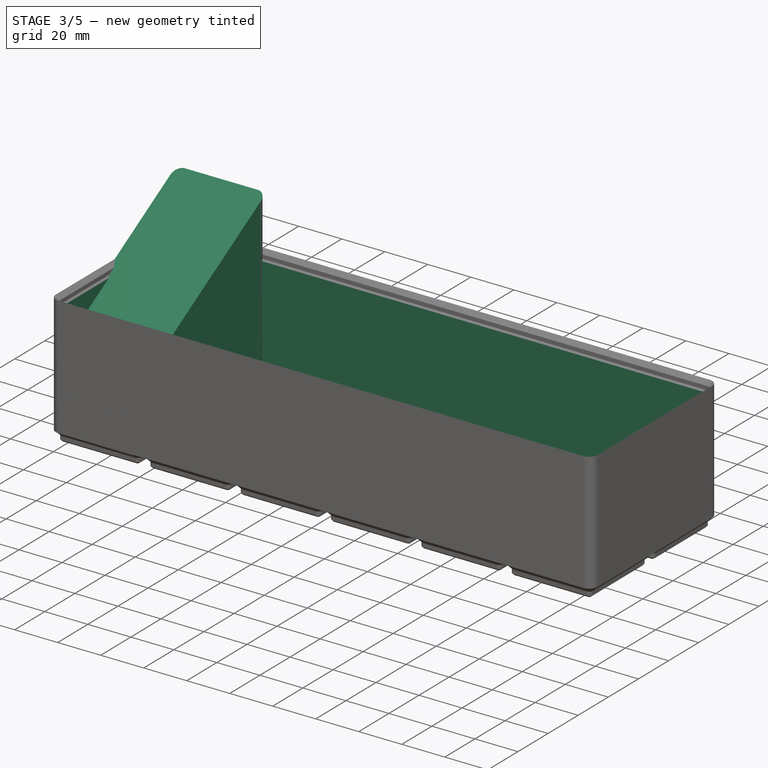
[diagram: stage 3 of 5 — iso view after this stage's code; geometry added in this stage tinted green]
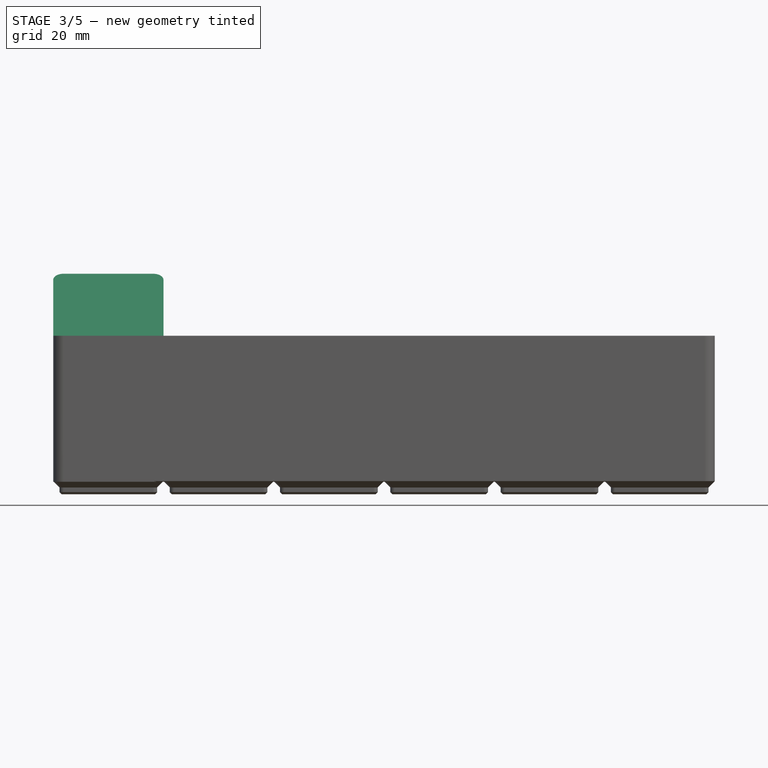
[diagram: stage 3 of 5 — front view after this stage's code; geometry added in this stage tinted green]
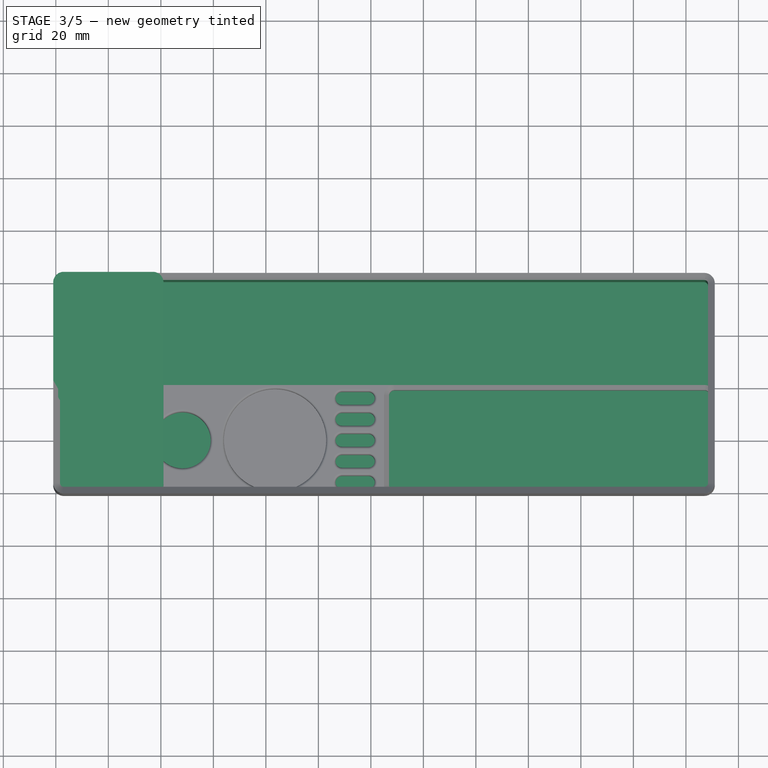
[diagram: stage 3 of 5 — top view after this stage's code; geometry added in this stage tinted green]
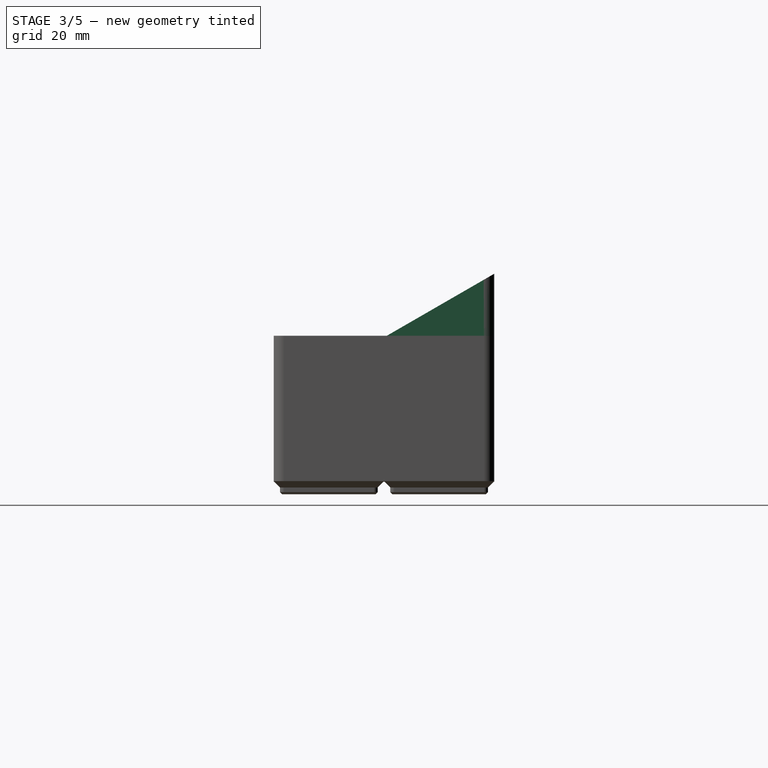
[diagram: stage 3 of 5 — right view after this stage's code; geometry added in this stage tinted green]
FEATURE [PartDesign::Body] Body001  label="Pliers, cutters and pens"
  AllowCompound = false
  Depth = 2
  Group = -> [Sketch,Pad,Pad001,Pad002,LinearArray,LinearArray001,Populate,LatticePattern,Sketch001,Pad003,Sketch006,Hole,Chamfer,Draft,Sketch007,Sketch008,SubtractiveLoft,LinearPattern,Sketch009,Hole001,LinearPattern001,Fillet,Fillet001,Fillet002]
  Height = 12
  Origin = -> Origin003
  Tip = -> Fillet002
  Width = 2
FEATURE [App::Point] Origin005
  Role = Origin
FEATURE [Sketcher::SketchObject] Sketch010
  ArcFitTolerance = 1e-06
  AttachmentSupport = -> [Origin006]
  ExternalTypes = [0]
  FullyConstrained = true
  MakeInternals = false
  MapMode = 5
  expr: Constraints[10] = href(<<Desolder pump and wick>>.Width) * 42 - 16
  expr: Constraints[11] = href(<<Desolder pump and wick>>.Depth) * 42 - 16
  sketch-geometry (4):
    g0: Circle CenterX=-13 CenterY=-13 CenterZ=0 NormalX=0 NormalY=0 NormalZ=1 AngleXU=0 Radius=3.25
    g1: Circle CenterX=-13 CenterY=55 CenterZ=0 NormalX=0 NormalY=0 NormalZ=1 AngleXU=0 Radius=3.25
    g2: Circle CenterX=13 CenterY=55 CenterZ=0 NormalX=0 NormalY=0 NormalZ=1 AngleXU=0 Radius=3.25
    g3: Circle CenterX=13 CenterY=-13 CenterZ=0 NormalX=0 NormalY=0 NormalZ=1 AngleXU=0 Radius=3.25
  constraints (12):
    c: Equal(g2,g1)
    c: Equal(g1,g0)
    c: Equal(g0,g3)
    c: Diameter(g0) = 6.5
    c: Horizontal(g1,g2)
    c: Horizontal(g0,g3)
    c: Vertical(g1,g0)
    c: Vertical(g2,g3)
    c: DistanceY(g0,g-1) = 13
    c: DistanceX(g0,g-1) = 13
    c: DistanceX(g0,g3) = 26
    c: DistanceY(g0,g1) = 68
FEATURE [Sketcher::SketchObject] Sketch011
  ArcFitTolerance = 1e-06
  AttachmentSupport = -> [XY_Plane002]
  ExternalTypes = [0]
  FullyConstrained = true
  MakeInternals = false
  MapMode = 5
  sketch-geometry (10):
    g0: LineSegment StartX=-17.8 StartY=17 StartZ=0 EndX=-17.8 EndY=-17 EndZ=0
    g1: LineSegment StartX=-17 StartY=-17.8 StartZ=0 EndX=17 EndY=-17.8 EndZ=0
    g2: LineSegment StartX=17.8 StartY=-17 StartZ=0 EndX=17.8 EndY=17 EndZ=0
    g3: LineSegment StartX=17 StartY=17.8 StartZ=0 EndX=-17 EndY=17.8 EndZ=0
    g4: ArcOfCircle CenterX=-17 CenterY=17 CenterZ=0 NormalX=0 NormalY=0 NormalZ=1 AngleXU=0 Radius=0.8 StartAngle=1.5708 EndAngle=3.14159
    g5: ArcOfCircle CenterX=-17 CenterY=-17 CenterZ=0 NormalX=0 NormalY=0 NormalZ=1 AngleXU=0 Radius=0.8 StartAngle=3.14159 EndAngle=4.71239
    g6: ArcOfCircle CenterX=17 CenterY=-17 CenterZ=0 NormalX=0 NormalY=0 NormalZ=1 AngleXU=0 Radius=0.8 StartAngle=4.71239 EndAngle=6.28319
    g7: ArcOfCircle CenterX=17 CenterY=17 CenterZ=0 NormalX=0 NormalY=0 NormalZ=1 AngleXU=0 Radius=0.8 StartAngle=9.76e-14 EndAngle=1.5708
    g8: GeomPoint [constr] X=-17.8 Y=17.8 Z=0
    g9: GeomPoint [constr] X=17.8 Y=-17.8 Z=0
  constraints (23):
    c: Tangent(g0,g4) = -1.5708
    c: Tangent(g0,g5) = -1.5708
    c: Tangent(g1,g5) = -1.5708
    c: Tangent(g1,g6) = -1.5708
    c: Tangent(g2,g6) = -1.5708
    c: Tangent(g2,g7) = -1.5708
    c: Tangent(g3,g7) = -1.5708
    c: Tangent(g3,g4) = -1.5708
    c: Vertical(g0)
    c: Vertical(g2)
    c: Horizontal(g1)
    c: Horizontal(g3)
    c: Equal(g4,g5)
    c: Equal(g5,g6)
    c: Equal(g6,g7)
    c: PointOnObject(g8,g0)
    c: PointOnObject(g8,g3)
    c: PointOnObject(g9,g1)
    c: PointOnObject(g9,g2)
    c: Symmetric(g8,g9,g-1)
    c: Equal(g3,g2)
    c: DistanceY(g9,g8) = 35.6
    c: Diameter(g5) = 1.6
FEATURE [PartDesign::Pad] Pad004
  Direction = (0,0,1)
  Length = 0.8
  Length2 = 10
  Profile = -> Sketch011
  ReferenceAxis = -> Sketch011 [N_Axis]
  SideType = 0
  Suppressed = false
  TaperAngle = 45
  Type = 0
  Type2 = 0
FEATURE [PartDesign::Pad] Pad005
  BaseFeature = -> Pad004
  Direction = (0,0,1)
  Length = 1.8
  Length2 = 10
  Profile = -> Pad004 [Edge3,Edge24,Edge22,Edge19,Edge16,Edge13,Edge10,Edge7]
  SideType = 0
  Suppressed = false
  Type = 0
  Type2 = 0
FEATURE [PartDesign::Pad] Pad006
  BaseFeature = -> Pad005
  Direction = (0,0,1)
  Length = 2.15
  Length2 = 10
  Profile = -> Pad005 [Edge16,Edge31,Edge32,Edge33,Edge34,Edge35,Edge36,Edge29]
  SideType = 0
  Suppressed = false
  TaperAngle = 45
  Type = 0
  Type2 = 0
FEATURE [Sketcher::SketchObject] Sketch012
  ArcFitTolerance = 1e-06
  AttachmentSupport = -> [Pad006]
  ExternalTypes = [0]
  FullyConstrained = true
  MakeInternals = false
  MapMode = 5
  Placement = pos=(0,0,4.75) rot=(0,0,1;0rad)
  expr: Constraints[23] = href(<<Desolder pump and wick>>.Width) * 42
  expr: Constraints[24] = href(<<Desolder pump and wick>>.Depth) * 42
  sketch-geometry (8):
    g0: ArcOfCircle CenterX=-17 CenterY=-17 CenterZ=0 NormalX=0 NormalY=0 NormalZ=1 AngleXU=0 Radius=4 StartAngle=3.14159 EndAngle=4.71239
    g1: LineSegment StartX=-21 StartY=-17 StartZ=0 EndX=-21 EndY=59 EndZ=0
    g2: LineSegment StartX=-17 StartY=-21 StartZ=0 EndX=17 EndY=-21 EndZ=0
    g3: ArcOfCircle CenterX=-17 CenterY=59 CenterZ=0 NormalX=0 NormalY=0 NormalZ=1 AngleXU=0 Radius=4 StartAngle=1.5708 EndAngle=3.14159
    g4: ArcOfCircle CenterX=17 CenterY=-17 CenterZ=0 NormalX=0 NormalY=0 NormalZ=1 AngleXU=0 Radius=4 StartAngle=4.71239 EndAngle=6.28319
    g5: LineSegment StartX=-17 StartY=63 StartZ=0 EndX=17 EndY=63 EndZ=0
    g6: ArcOfCircle CenterX=17 CenterY=59 CenterZ=0 NormalX=0 NormalY=0 NormalZ=1 AngleXU=0 Radius=4 StartAngle=0 EndAngle=1.5708
    g7: LineSegment StartX=21 StartY=59 StartZ=0 EndX=21 EndY=-17 EndZ=0
  constraints (28):
    c: Vertical(g0,g0)
    c: Horizontal(g0,g0)
    c: Coincident(g1,g0)
    c: Vertical(g1)
    c: Coincident(g2,g0)
    c: Horizontal(g2)
    c: Coincident(g3,g1)
    c: Coincident(g4,g2)
    c: Vertical(g4,g2)
    c: Horizontal(g4,g4)
    c: Horizontal(g1,g3)
    c: Vertical(g3,g3)
    c: Equal(g0,g3)
    c: Equal(g0,g4)
    c: Coincident(g5,g3)
    c: Horizontal(g5)
    c: Vertical(g5,g2)
    c: Coincident(g6,g5)
    c: Vertical(g5,g6)
    c: Horizontal(g6,g6)
    c: Coincident(g7,g6)
    c: Coincident(g7,g4)
    c: Equal(g0,g6)
    c: DistanceX(g0,g4) = 42
    c: DistanceY(g2,g5) = 84
    c: DistanceX(g0,g-1) = 21
    c: DistanceY(g0,g-1) = 21
    c: Radius(g0) = 4
FEATURE [Part::Part2DObjectPython] LinearArray002  label="LinearArrayX002"  # Draft 2D object (typed FeaturePython)
  Alignment = 0
  AttacherType = Attacher::AttachEngine3D
  CellStart = A1
  Count = 1
  Dir = (1,0,0)
  DirIsDriven = true
  DistributionLaw = 0
  DrivenProperty = 1
  EndInclusive = true
  ExposePlacement = false
  GeneratorMode = 1
  Link = -> Pad006
  LinkSubelement = Edge6
  MarkerShape = 1
  MarkerSize = 5
  NumElements = 1
  OrientMode = 1
  Point = (-17,-17.8,0)
  PointIsDriven = true
  Reverse = false
  SpanEnd = 34
  SpanStart = 0
  Step = 42
  SubLink = -> Pad006 [Edge6]
  Type = lattice2LinearArray.LinearArray
  VSGVersion = 1
  Values = 0.0
  ValuesSource = 2
  isLattice = 1
  expr: Count = href(<<Desolder pump and wick>>.Width)
FEATURE [Part::Part2DObjectPython] LinearArray003  label="LinearArrayY002"  # Draft 2D object (typed FeaturePython)
  Alignment = 0
  AttacherType = Attacher::AttachEngine3D
  CellStart = A1
  Count = 2
  Dir = (0,1,0)
  DirIsDriven = true
  DistributionLaw = 0
  DrivenProperty = 1
  EndInclusive = true
  ExposePlacement = false
  GeneratorMode = 1
  Link = -> Pad006
  LinkSubelement = Edge1
  MarkerShape = 1
  MarkerSize = 5
  NumElements = 2
  OrientMode = 1
  Point = (-17.8,-17,0)
  PointIsDriven = true
  Reverse = true
  SpanEnd = 34
  SpanStart = 0
  Step = 42
  SubLink = -> Pad006 [Edge1]
  Type = lattice2LinearArray.LinearArray
  VSGVersion = 1
  Values = 0.0 | 42.0
  ValuesSource = 2
  isLattice = 1
  expr: Count = href(<<Desolder pump and wick>>.Depth)
FEATURE [Part::Part2DObjectPython] Populate001  label="Gridfinity array002"  # Draft 2D object (typed FeaturePython)
  AttacherType = Attacher::AttachEngine3D
  Copying = 0
  ExposePlacement = false
  MarkerShape = 1
  MarkerSize = 5
  NumElements = 2
  Object = -> LinearArray002
  OutputCompounding = 0
  PlacementsTo = -> LinearArray003
  Referencing = 1
  Type = lattice2PopulateCopies.LatticePopulateCopies
  isLattice = 1
FEATURE [PartDesign::FeaturePython] LatticePattern001  label="Gridfinity foundation002"  # WARN: FeaturePython — macro-defined, semantics opaque (R4)
  AllowBaseFeature = true
  BaseFeature = -> Pad006
  Debug = false
  FeaturesToCopy = -> [Pad006,Pad004,Pad005]
  IgnoreUnsupported = false
  PlacementsTo = -> Populate001
  Referencing = 1
  Selfintersections = false
  SignOverride = 0
  SkipFirstInBody = false
  Suppressed = false
FEATURE [PartDesign::Pad] Pad007  label="Tray top001"
  BaseFeature = -> LatticePattern001
  Direction = (0,0,1)
  Length = 79.25
  Length2 = 10
  Profile = -> Sketch012
  ReferenceAxis = -> Sketch012 [N_Axis]
  Refine = true
  SideType = 0
  Suppressed = false
  Type = 0
  Type2 = 0
  expr: Length = href(<<Desolder pump and wick>>.Height) * 7 - 4.75
FEATURE [PartDesign::Hole] Hole002
  BaseFeature = -> Pad007
  BaseProfileType = 7
  CustomThreadClearance = 0
  Depth = 2
  DepthType = 0
  Diameter = 6.5
  DrillForDepth = false
  DrillPoint = 1
  DrillPointAngle = 90
  HoleCutCountersinkAngle = 90
  HoleCutCustomValues = false
  HoleCutDepth = 0
  HoleCutDiameter = 0
  HoleCutType = 0
  ModelThread = false
  Profile = -> Sketch010
  Refine = true
  Reversed = true
  Suppressed = false
  Tapered = false
  TaperedAngle = 90
  ThreadClass = 0
  ThreadDepth = 2
  ThreadDepthType = 0
  ThreadDiameter = 6.5
  ThreadDirection = 0
  ThreadFit = 0
  ThreadSize = 0
  ThreadType = 0
  Threaded = false
  UseCustomThreadClearance = false
FEATURE [PartDesign::Draft] Draft001
  Angle = -30
  Base = -> Hole002 [Face35]
  BaseFeature = -> Hole002
  NeutralPlane = -> Hole002 [Face15]
  SupportTransform = false
  Suppressed = false
FEATURE [Sketcher::SketchObject] Sketch004
  ArcFitTolerance = 1e-06
  AttachmentSupport = -> [Chamfer002]
  ExternalGeometry = -> [Chamfer002]
  ExternalTypes = [0]
  FullyConstrained = true
  MakeInternals = false
  MapMode = 5
  Placement = pos=(0,0,56) rot=(0,0,1;0rad)
  sketch-geometry (8):
    g0: ArcOfCircle CenterX=-17 CenterY=59 CenterZ=0 NormalX=0 NormalY=0 NormalZ=1 AngleXU=0 Radius=1.4 StartAngle=1.5708 EndAngle=3.14159
    g1: ArcOfCircle CenterX=227 CenterY=59 CenterZ=0 NormalX=0 NormalY=0 NormalZ=1 AngleXU=0 Radius=1.4 StartAngle=0 EndAngle=1.5708
    g2: ArcOfCircle CenterX=227 CenterY=-17 CenterZ=0 NormalX=0 NormalY=0 NormalZ=1 AngleXU=0 Radius=1.4 StartAngle=4.71239 EndAngle=6.28319
    g3: ArcOfCircle CenterX=-17 CenterY=-17 CenterZ=0 NormalX=0 NormalY=0 NormalZ=1 AngleXU=0 Radius=1.4 StartAngle=3.14159 EndAngle=4.71239
    g4: LineSegment StartX=-18.4 StartY=59 StartZ=0 EndX=-18.4 EndY=-17 EndZ=0
    g5: LineSegment StartX=-17 StartY=60.4 StartZ=0 EndX=227 EndY=60.4 EndZ=0
    g6: LineSegment StartX=228.4 StartY=59 StartZ=0 EndX=228.4 EndY=-17 EndZ=0
    g7: LineSegment StartX=227 StartY=-18.4 StartZ=0 EndX=-17 EndY=-18.4 EndZ=0
  constraints (22):
    c: Coincident(g0,g-3)
    c: Coincident(g2,g-4)
    c: Horizontal(g3,g3)
    c: Horizontal(g0,g0)
    c: Horizontal(g1,g1)
    c: Horizontal(g2,g2)
    c: Horizontal(g0,g1)
    c: Horizontal(g3,g2)
    c: Vertical(g3,g3)
    c: Vertical(g0,g-3)
    c: Vertical(g1,g1)
    c: Vertical(g2,g2)
    c: Vertical(g0,g3)
    c: Equal(g-3,g0)
    c: Tangent(g4,g0) = -1.5708
    c: Coincident(g4,g3)
    c: Tangent(g5,g0) = 1.5708
    c: Coincident(g5,g1)
    c: Tangent(g6,g1) = 1.5708
    c: Coincident(g6,g2)
    c: Tangent(g7,g2) = 1.5708
    c: Coincident(g7,g3)
FEATURE [PartDesign::Pocket] Pocket003
  BaseFeature = -> Chamfer002
  Direction = (0,0,-1)
  Length = 49
  Length2 = 5
  Profile = -> Sketch004
  ReferenceAxis = -> Sketch004 [N_Axis]
  Refine = true
  SideType = 0
  Suppressed = false
  Type = 0
  Type2 = 0
  expr: Length = href(<<Tray>>.InnerDepth)
FEATURE [PartDesign::Hole] Hole003
  BaseFeature = -> Pocket003
  BaseProfileType = 7
  CustomThreadClearance = 0
  Depth = 2
  DepthType = 0
  Diameter = 6.5
  DrillForDepth = false
  DrillPoint = 1
  DrillPointAngle = 90
  HoleCutCountersinkAngle = 90
  HoleCutCustomValues = false
  HoleCutDepth = 0
  HoleCutDiameter = 0
  HoleCutType = 0
  ModelThread = false
  Profile = -> Sketch015
  Refine = true
  Reversed = true
  Suppressed = false
  Tapered = false
  TaperedAngle = 90
  ThreadClass = 0
  ThreadDepth = 2
  ThreadDepthType = 0
  ThreadDiameter = 6.5
  ThreadDirection = 0
  ThreadFit = 0
  ThreadSize = 0
  ThreadType = 0
  Threaded = false
  UseCustomThreadClearance = false
FEATURE [PartDesign::Chamfer] Chamfer003
  Angle = 45
  Base = -> Hole003 [Edge103]
  BaseFeature = -> Hole003
  ChamferType = 0
  FlipDirection = false
  Size = 0.249
  Size2 = 1
  SupportTransform = false
  Suppressed = false
  UseAllEdges = false
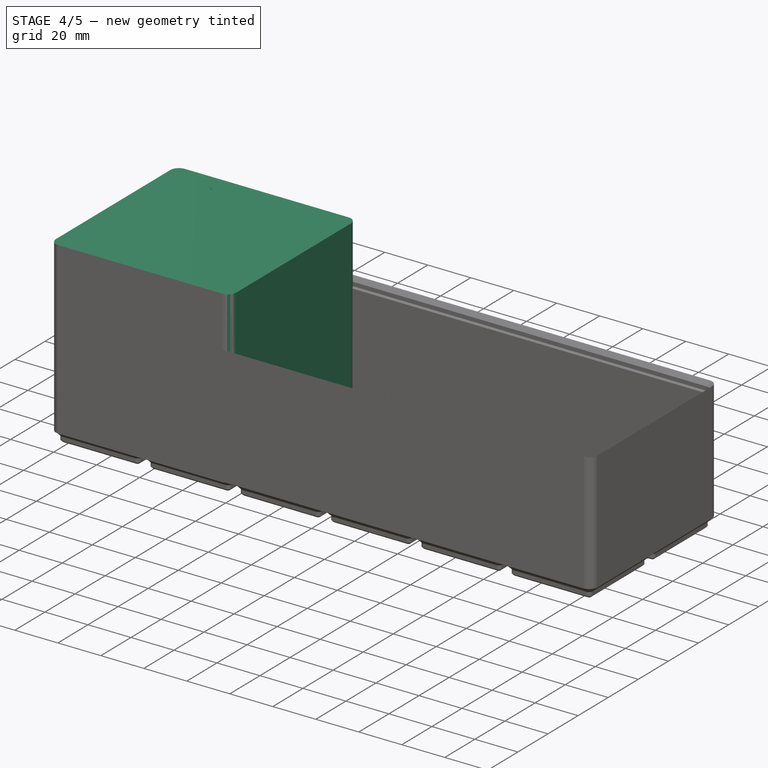
[diagram: stage 4 of 5 — iso view after this stage's code; geometry added in this stage tinted green]
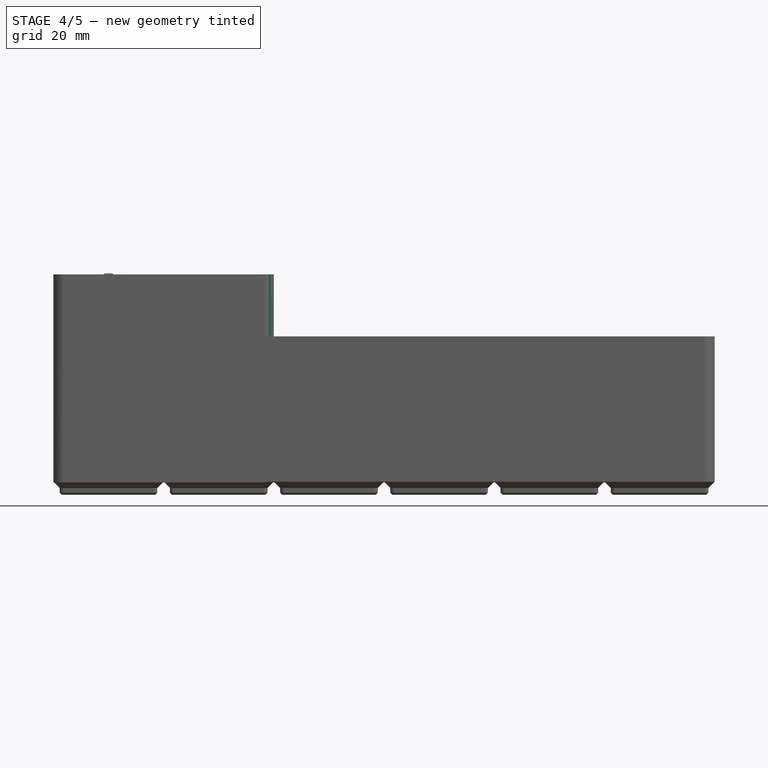
[diagram: stage 4 of 5 — front view after this stage's code; geometry added in this stage tinted green]
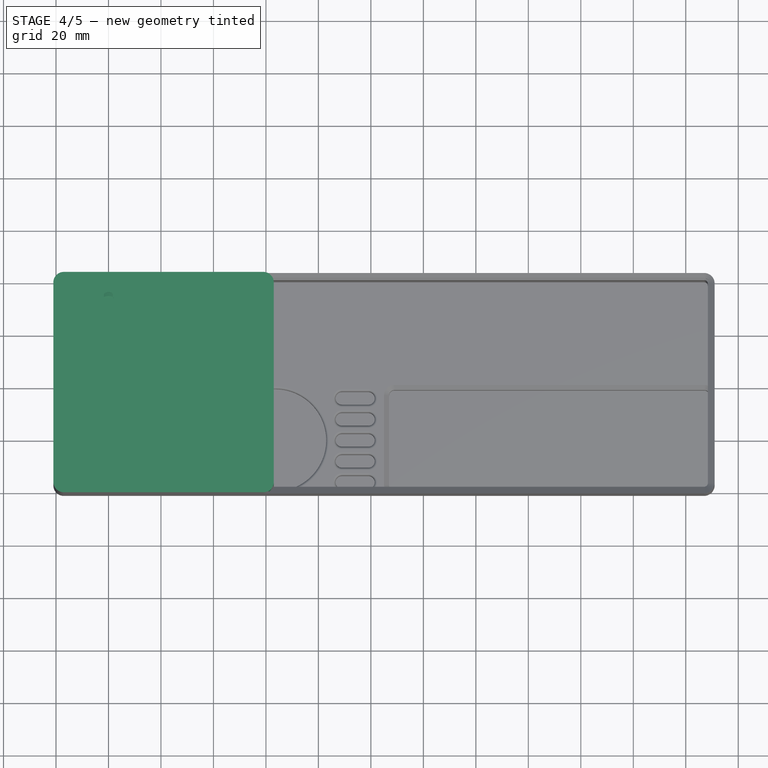
[diagram: stage 4 of 5 — top view after this stage's code; geometry added in this stage tinted green]
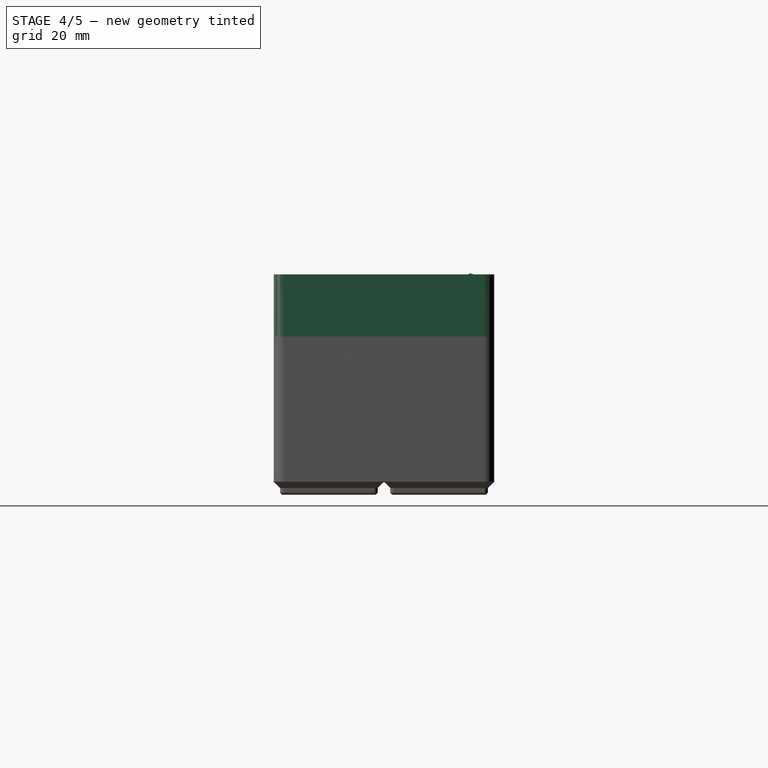
[diagram: stage 4 of 5 — right view after this stage's code; geometry added in this stage tinted green]
FEATURE [App::Point] Origin002
  Role = Origin
FEATURE [Sketcher::SketchObject] Sketch006
  ArcFitTolerance = 1e-06
  AttachmentSupport = -> [Origin003]
  ExternalTypes = [0]
  FullyConstrained = true
  MakeInternals = false
  MapMode = 5
  expr: Constraints[10] = href(<<Pliers, cutters and pens>>.Width) * 42 - 16
  expr: Constraints[11] = href(<<Pliers, cutters and pens>>.Depth) * 42 - 16
  sketch-geometry (4):
    g0: Circle CenterX=-13 CenterY=-13 CenterZ=0 NormalX=0 NormalY=0 NormalZ=1 AngleXU=0 Radius=3.25
    g1: Circle CenterX=-13 CenterY=55 CenterZ=0 NormalX=0 NormalY=0 NormalZ=1 AngleXU=0 Radius=3.25
    g2: Circle CenterX=55 CenterY=55 CenterZ=0 NormalX=0 NormalY=0 NormalZ=1 AngleXU=0 Radius=3.25
    g3: Circle CenterX=55 CenterY=-13 CenterZ=0 NormalX=0 NormalY=0 NormalZ=1 AngleXU=0 Radius=3.25
  constraints (12):
    c: Equal(g2,g1)
    c: Equal(g1,g0)
    c: Equal(g0,g3)
    c: Diameter(g0) = 6.5
    c: Horizontal(g1,g2)
    c: Horizontal(g0,g3)
    c: Vertical(g1,g0)
    c: Vertical(g2,g3)
    c: DistanceY(g0,g-1) = 13
    c: DistanceX(g0,g-1) = 13
    c: DistanceX(g0,g3) = 68
    c: DistanceY(g0,g1) = 68
FEATURE [Sketcher::SketchObject] Sketch
  ArcFitTolerance = 1e-06
  AttachmentSupport = -> [XY_Plane001]
  ExternalTypes = [0]
  FullyConstrained = true
  MakeInternals = false
  MapMode = 5
  sketch-geometry (10):
    g0: LineSegment StartX=-17.8 StartY=17 StartZ=0 EndX=-17.8 EndY=-17 EndZ=0
    g1: LineSegment StartX=-17 StartY=-17.8 StartZ=0 EndX=17 EndY=-17.8 EndZ=0
    g2: LineSegment StartX=17.8 StartY=-17 StartZ=0 EndX=17.8 EndY=17 EndZ=0
    g3: LineSegment StartX=17 StartY=17.8 StartZ=0 EndX=-17 EndY=17.8 EndZ=0
    g4: ArcOfCircle CenterX=-17 CenterY=17 CenterZ=0 NormalX=0 NormalY=0 NormalZ=1 AngleXU=0 Radius=0.8 StartAngle=1.5708 EndAngle=3.14159
    g5: ArcOfCircle CenterX=-17 CenterY=-17 CenterZ=0 NormalX=0 NormalY=0 NormalZ=1 AngleXU=0 Radius=0.8 StartAngle=3.14159 EndAngle=4.71239
    g6: ArcOfCircle CenterX=17 CenterY=-17 CenterZ=0 NormalX=0 NormalY=0 NormalZ=1 AngleXU=0 Radius=0.8 StartAngle=4.71239 EndAngle=6.28319
    g7: ArcOfCircle CenterX=17 CenterY=17 CenterZ=0 NormalX=0 NormalY=0 NormalZ=1 AngleXU=0 Radius=0.8 StartAngle=9.76e-14 EndAngle=1.5708
    g8: GeomPoint [constr] X=-17.8 Y=17.8 Z=0
    g9: GeomPoint [constr] X=17.8 Y=-17.8 Z=0
  constraints (23):
    c: Tangent(g0,g4) = -1.5708
    c: Tangent(g0,g5) = -1.5708
    c: Tangent(g1,g5) = -1.5708
    c: Tangent(g1,g6) = -1.5708
    c: Tangent(g2,g6) = -1.5708
    c: Tangent(g2,g7) = -1.5708
    c: Tangent(g3,g7) = -1.5708
    c: Tangent(g3,g4) = -1.5708
    c: Vertical(g0)
    c: Vertical(g2)
    c: Horizontal(g1)
    c: Horizontal(g3)
    c: Equal(g4,g5)
    c: Equal(g5,g6)
    c: Equal(g6,g7)
    c: PointOnObject(g8,g0)
    c: PointOnObject(g8,g3)
    c: PointOnObject(g9,g1)
    c: PointOnObject(g9,g2)
    c: Symmetric(g8,g9,g-1)
    c: Equal(g3,g2)
    c: DistanceY(g9,g8) = 35.6
    c: Diameter(g5) = 1.6
FEATURE [PartDesign::Pad] Pad
  Direction = (0,0,1)
  Length = 0.8
  Length2 = 10
  Profile = -> Sketch
  ReferenceAxis = -> Sketch [N_Axis]
  SideType = 0
  Suppressed = false
  TaperAngle = 45
  Type = 0
  Type2 = 0
FEATURE [PartDesign::Pad] Pad001
  BaseFeature = -> Pad
  Direction = (0,0,1)
  Length = 1.8
  Length2 = 10
  Profile = -> Pad [Edge3,Edge24,Edge22,Edge19,Edge16,Edge13,Edge10,Edge7]
  SideType = 0
  Suppressed = false
  Type = 0
  Type2 = 0
FEATURE [PartDesign::Pad] Pad002
  BaseFeature = -> Pad001
  Direction = (0,0,1)
  Length = 2.15
  Length2 = 10
  Profile = -> Pad001 [Edge16,Edge31,Edge32,Edge33,Edge34,Edge35,Edge36,Edge29]
  SideType = 0
  Suppressed = false
  TaperAngle = 45
  Type = 0
  Type2 = 0
FEATURE [Sketcher::SketchObject] Sketch001
  ArcFitTolerance = 1e-06
  AttachmentSupport = -> [Pad002]
  ExternalTypes = [0]
  FullyConstrained = true
  MakeInternals = false
  MapMode = 5
  Placement = pos=(0,0,4.75) rot=(0,0,1;0rad)
  expr: Constraints[18] = href(<<Pliers, cutters and pens>>.Width) * 42
  expr: Constraints[19] = href(<<Pliers, cutters and pens>>.Depth) * 42
  sketch-geometry (8):
    g0: ArcOfCircle CenterX=-17 CenterY=-17 CenterZ=0 NormalX=0 NormalY=0 NormalZ=1 AngleXU=0 Radius=4 StartAngle=3.14159 EndAngle=4.71239
    g1: LineSegment StartX=-21 StartY=-17 StartZ=0 EndX=-21 EndY=59 EndZ=0
    g2: LineSegment StartX=-17 StartY=-21 StartZ=0 EndX=59 EndY=-21 EndZ=0
    g3: ArcOfCircle CenterX=-17 CenterY=59 CenterZ=0 NormalX=0 NormalY=0 NormalZ=1 AngleXU=0 Radius=4 StartAngle=1.5708 EndAngle=3.14159
    g4: LineSegment StartX=-17 StartY=63 StartZ=0 EndX=59 EndY=63 EndZ=0
    g5: ArcOfCircle CenterX=59 CenterY=59 CenterZ=0 NormalX=0 NormalY=0 NormalZ=1 AngleXU=0 Radius=4 StartAngle=0 EndAngle=1.5708
    g6: LineSegment StartX=63 StartY=59 StartZ=0 EndX=63 EndY=-17 EndZ=0
    g7: ArcOfCircle CenterX=59 CenterY=-17 CenterZ=0 NormalX=0 NormalY=0 NormalZ=1 AngleXU=0 Radius=4 StartAngle=4.71239 EndAngle=6.28319
  constraints (28):
    c: Vertical(g0,g0)
    c: Horizontal(g0,g0)
    c: Coincident(g1,g0)
    c: Vertical(g1)
    c: Coincident(g2,g0)
    c: Horizontal(g2)
    c: Coincident(g3,g1)
    c: Horizontal(g1,g3)
    c: Vertical(g3,g3)
    c: Equal(g0,g3)
    c: Coincident(g4,g3)
    c: Horizontal(g4)
    c: Vertical(g4,g2)
    c: Coincident(g5,g4)
    c: Vertical(g4,g5)
    c: Horizontal(g5,g5)
    c: Coincident(g6,g5)
    c: Equal(g0,g5)
    c: DistanceX(g0,g6) = 84
    c: DistanceY(g2,g4) = 84
    c: DistanceX(g0,g-1) = 21
    c: DistanceY(g0,g-1) = 21
    c: Radius(g0) = 4
    c: Vertical(g6)
    c: Horizontal(g6,g0)
    c: Coincident(g7,g6)
    c: Coincident(g7,g2)
    c: Horizontal(g7,g6)
FEATURE [Part::Part2DObjectPython] LinearArray  label="LinearArrayX001"  # Draft 2D object (typed FeaturePython)
  Alignment = 0
  AttacherType = Attacher::AttachEngine3D
  CellStart = A1
  Count = 2
  Dir = (1,0,0)
  DirIsDriven = true
  DistributionLaw = 0
  DrivenProperty = 1
  EndInclusive = true
  ExposePlacement = false
  GeneratorMode = 1
  Link = -> Pad002
  LinkSubelement = Edge6
  MarkerShape = 1
  MarkerSize = 5
  NumElements = 2
  OrientMode = 1
  Point = (-17,-17.8,0)
  PointIsDriven = true
  Reverse = false
  SpanEnd = 34
  SpanStart = 0
  Step = 42
  SubLink = -> Pad002 [Edge6]
  Type = lattice2LinearArray.LinearArray
  VSGVersion = 1
  Values = 0.0 | 42.0
  ValuesSource = 2
  isLattice = 1
  expr: Count = href(<<Pliers, cutters and pens>>.Width)
FEATURE [Part::Part2DObjectPython] LinearArray001  label="LinearArrayY001"  # Draft 2D object (typed FeaturePython)
  Alignment = 0
  AttacherType = Attacher::AttachEngine3D
  CellStart = A1
  Count = 2
  Dir = (0,1,0)
  DirIsDriven = true
  DistributionLaw = 0
  DrivenProperty = 1
  EndInclusive = true
  ExposePlacement = false
  GeneratorMode = 1
  Link = -> Pad002
  LinkSubelement = Edge1
  MarkerShape = 1
  MarkerSize = 5
  NumElements = 2
  OrientMode = 1
  Point = (-17.8,-17,0)
  PointIsDriven = true
  Reverse = true
  SpanEnd = 34
  SpanStart = 0
  Step = 42
  SubLink = -> Pad002 [Edge1]
  Type = lattice2LinearArray.LinearArray
  VSGVersion = 1
  Values = 0.0 | 42.0
  ValuesSource = 2
  isLattice = 1
  expr: Count = href(<<Pliers, cutters and pens>>.Depth)
FEATURE [Part::Part2DObjectPython] Populate  label="Gridfinity array001"  # Draft 2D object (typed FeaturePython)
  AttacherType = Attacher::AttachEngine3D
  Copying = 0
  ExposePlacement = false
  MarkerShape = 1
  MarkerSize = 5
  NumElements = 4
  Object = -> LinearArray
  OutputCompounding = 0
  PlacementsTo = -> LinearArray001
  Referencing = 1
  Type = lattice2PopulateCopies.LatticePopulateCopies
  isLattice = 1
FEATURE [PartDesign::FeaturePython] LatticePattern  label="Gridfinity foundation001"  # WARN: FeaturePython — macro-defined, semantics opaque (R4)
  AllowBaseFeature = true
  BaseFeature = -> Pad002
  Debug = false
  FeaturesToCopy = -> [Pad002,Pad,Pad001]
  IgnoreUnsupported = false
  PlacementsTo = -> Populate
  Referencing = 1
  Selfintersections = false
  SignOverride = 0
  SkipFirstInBody = false
  Suppressed = false
FEATURE [PartDesign::Pad] Pad003  label="Tray top"
  BaseFeature = -> LatticePattern
  Direction = (0,0,1)
  Length = 79.25
  Length2 = 10
  Profile = -> Sketch001
  ReferenceAxis = -> Sketch001 [N_Axis]
  Refine = true
  SideType = 0
  Suppressed = false
  Type = 0
  Type2 = 0
  expr: Length = href(<<Pliers, cutters and pens>>.Height) * 7 - 4.75
FEATURE [Sketcher::SketchObject] Sketch013
  ArcFitTolerance = 1e-06
  AttachmentSupport = -> [Draft001]
  ExternalGeometry = -> [Draft001]
  ExternalTypes = [0,0]
  FullyConstrained = true
  MakeInternals = false
  MapMode = 5
  Placement = pos=(0,-20.6231,35.7202) rot=(1,0,0;0.523599rad)
  sketch-geometry (2):
    g0: Circle CenterX=5.92e-14 CenterY=48.0622 CenterZ=0 NormalX=0 NormalY=0 NormalZ=1 AngleXU=0 Radius=10.25
    g1: GeomPoint [constr] X=2.869e-13 Y=96.5596 Z=0
  constraints (3):
    c: Diameter(g0) = 20.5
    c: Symmetric(g-3,g-3,g1)
    c: Symmetric(g-4,g-3,g0)
FEATURE [PartDesign::Pocket] Pocket
  BaseFeature = -> Draft001
  Direction = (0,0.5,-0.866025)
  Length = 35
  Length2 = 5
  Profile = -> Sketch013
  ReferenceAxis = -> Sketch013 [N_Axis]
  SideType = 0
  Suppressed = false
  Type = 0
  Type2 = 0
FEATURE [PartDesign::Pocket] Pocket001
  BaseFeature = -> Pocket
  Direction = (-1e-16,0.5,-0.866025)
  Length = 11
  Length2 = 5
  Profile = -> Pocket [Face65]
  SideType = 0
  Suppressed = false
  TaperAngle = -30
  Type = 0
  Type2 = 0
FEATURE [PartDesign::Pocket] Pocket002
  BaseFeature = -> Pocket001
  Direction = (3e-16,0.5,-0.866025)
  Length = 16
  Length2 = 5
  Profile = -> Pocket001 [Edge151]
  SideType = 0
  Suppressed = false
  Type = 0
  Type2 = 0
FEATURE [PartDesign::Fillet] Fillet003
  Base = -> Pocket002 [Edge50,Edge98]
  BaseFeature = -> Pocket002
  Radius = 1.5
  SupportTransform = false
  Suppressed = false
  UseAllEdges = false
FEATURE [Sketcher::SketchObject] Sketch014
  ArcFitTolerance = 1e-06
  AttachmentSupport = -> [Fillet003]
  ExternalGeometry = -> [Fillet003]
  ExternalTypes = [0,0]
  FullyConstrained = true
  MakeInternals = false
  MapMode = 5
  Placement = pos=(0,-20.6231,35.7202) rot=(1,0,0;0.523599rad)
  sketch-geometry (23):
    g0: GeomPoint [constr] X=2.892e-13 Y=93.9615 Z=0
    g1: GeomPoint [constr] X=2.275e-13 Y=84.8122 Z=0
    g2: GeomPoint [constr] X=5.92e-14 Y=59.8122 Z=0
    g3: Circle [constr] CenterX=2.275e-13 CenterY=84.8122 CenterZ=0 NormalX=0 NormalY=0 NormalZ=1 AngleXU=0 Radius=23
    g4: LineSegment [constr] StartX=2.892e-13 StartY=93.9615 StartZ=0 EndX=5.92e-14 EndY=59.8122 EndZ=0
    g5: ArcOfCircle CenterX=2.275e-13 CenterY=84.8122 CenterZ=0 NormalX=0 NormalY=0 NormalZ=1 AngleXU=0 Radius=5 StartAngle=1.21323 EndAngle=1.92837
    g6: ArcOfCircle CenterX=2.275e-13 CenterY=84.8122 CenterZ=0 NormalX=0 NormalY=0 NormalZ=1 AngleXU=0 Radius=3.63 StartAngle=0.503043 EndAngle=1.06775
    g7: ArcOfCircle CenterX=2.275e-13 CenterY=84.8122 CenterZ=0 NormalX=0 NormalY=0 NormalZ=1 AngleXU=0 Radius=5 StartAngle=5.92561 EndAngle=6.64076
    g8: ArcOfCircle CenterX=2.275e-13 CenterY=84.8122 CenterZ=0 NormalX=0 NormalY=0 NormalZ=1 AngleXU=0 Radius=3.63 StartAngle=5.21543 EndAngle=5.78014
    g9: ArcOfCircle CenterX=2.275e-13 CenterY=84.8122 CenterZ=0 NormalX=0 NormalY=0 NormalZ=1 AngleXU=0 Radius=5 StartAngle=4.35482 EndAngle=5.06996
    g10: ArcOfCircle CenterX=2.275e-13 CenterY=84.8122 CenterZ=0 NormalX=0 NormalY=0 NormalZ=1 AngleXU=0 Radius=3.63 StartAngle=3.64464 EndAngle=4.20935
    g11: ArcOfCircle CenterX=2.275e-13 CenterY=84.8122 CenterZ=0 NormalX=0 NormalY=0 NormalZ=1 AngleXU=0 Radius=5 StartAngle=2.78402 EndAngle=3.49916
    g12: ArcOfCircle CenterX=2.275e-13 CenterY=84.8122 CenterZ=0 NormalX=0 NormalY=0 NormalZ=1 AngleXU=0 Radius=3.63 StartAngle=2.07384 EndAngle=2.63855
    g13: LineSegment StartX=-1.75 StartY=89.4959 StartZ=0 EndX=-1.75 EndY=87.9925 EndZ=0
    g14: LineSegment StartX=1.75 StartY=89.4959 StartZ=0 EndX=1.75 EndY=87.9925 EndZ=0
    g15: LineSegment StartX=3.18031 StartY=86.5622 StartZ=0 EndX=4.68375 EndY=86.5622 EndZ=0
    g16: LineSegment StartX=3.18031 StartY=83.0622 StartZ=0 EndX=4.68375 EndY=83.0622 EndZ=0
    g17: LineSegment StartX=1.75 StartY=81.6319 StartZ=0 EndX=1.75 EndY=80.1284 EndZ=0
    g18: LineSegment StartX=-1.75 StartY=81.6319 StartZ=0 EndX=-1.75 EndY=80.1284 EndZ=0
    g19: LineSegment StartX=-3.18031 StartY=83.0622 StartZ=0 EndX=-4.68375 EndY=83.0622 EndZ=0
    g20: LineSegment StartX=-3.18031 StartY=86.5622 StartZ=0 EndX=-4.68375 EndY=86.5622 EndZ=0
    g21: LineSegment [constr] StartX=-1.75 StartY=87.9925 StartZ=0 EndX=1.75 EndY=87.9925 EndZ=0
    g22: LineSegment [constr] StartX=3.18031 StartY=86.5622 StartZ=0 EndX=3.18031 EndY=83.0622 EndZ=0
  constraints (61):
    c: Symmetric(g-3,g-3,g0)
    c: PointOnObject(g2,g-4)
    c: Vertical(g-4,g2)
    c: Diameter(g3) = 46
    c: Coincident(g3,g1)
    c: Coincident(g4,g0)
    c: Coincident(g4,g2)
    c: PointOnObject(g1,g4)
    c: DistanceY(g2,g1) = 25
    c: Coincident(g5,g1)
    c: Coincident(g6,g1)
    c: Coincident(g7,g1)
    c: Coincident(g8,g1)
    c: Coincident(g9,g1)
    c: Coincident(g10,g1)
    c: Coincident(g11,g1)
    c: Coincident(g12,g1)
    c: Coincident(g13,g5)
    c: Coincident(g13,g12)
    c: Coincident(g14,g5)
    c: Coincident(g14,g6)
    c: Coincident(g15,g6)
    c: Coincident(g15,g7)
    c: Coincident(g16,g8)
    c: Coincident(g16,g7)
    c: Horizontal(g16)
    c: Coincident(g17,g8)
    c: Coincident(g17,g9)
    c: Coincident(g18,g10)
    c: Coincident(g18,g9)
    c: Coincident(g19,g10)
    c: Coincident(g19,g11)
    c: Coincident(g20,g12)
    c: Coincident(g20,g11)
    c: Vertical(g13)
    c: Vertical(g14)
    c: Horizontal(g15)
    c: Vertical(g17)
    c: Vertical(g18)
    c: Horizontal(g19)
    c: Horizontal(g20)
    c: Vertical(g12,g10)
    c: Vertical(g6,g8)
    c: Horizontal(g12,g6)
    c: Horizontal(g10,g8)
    c: Equal(g12,g6)
    c: Equal(g6,g8)
    c: Equal(g8,g10)
    c: Equal(g11,g5)
    c: Equal(g5,g7)
    c: Equal(g7,g9)
    c: Radius(g8) = 3.63
    c: Radius(g7) = 5
    c: DistanceX(g5,g5) = 3.5
    c: Coincident(g21,g12)
    c: Coincident(g21,g6)
    c: Coincident(g22,g6)
    c: Coincident(g22,g8)
    c: Vertical(g22)
    c: Horizontal(g21)
    c: Equal(g21,g22)
FEATURE [PartDesign::Pad] Pad008
  BaseFeature = -> Fillet003
  Direction = (0,-0.5,0.866025)
  Length = 5
  Length2 = 10
  Profile = -> Sketch014
  ReferenceAxis = -> Sketch014 [N_Axis]
  SideType = 0
  Suppressed = false
  Type = 0
  Type2 = 0
FEATURE [PartDesign::Chamfer] Chamfer001
  Angle = 45
  Base = -> Pad008 [Edge110,Edge134,Edge126,Edge118]
  BaseFeature = -> Pad008
  ChamferType = 0
  FlipDirection = false
  Size = 1
  Size2 = 1
  SupportTransform = false
  Suppressed = false
  UseAllEdges = false
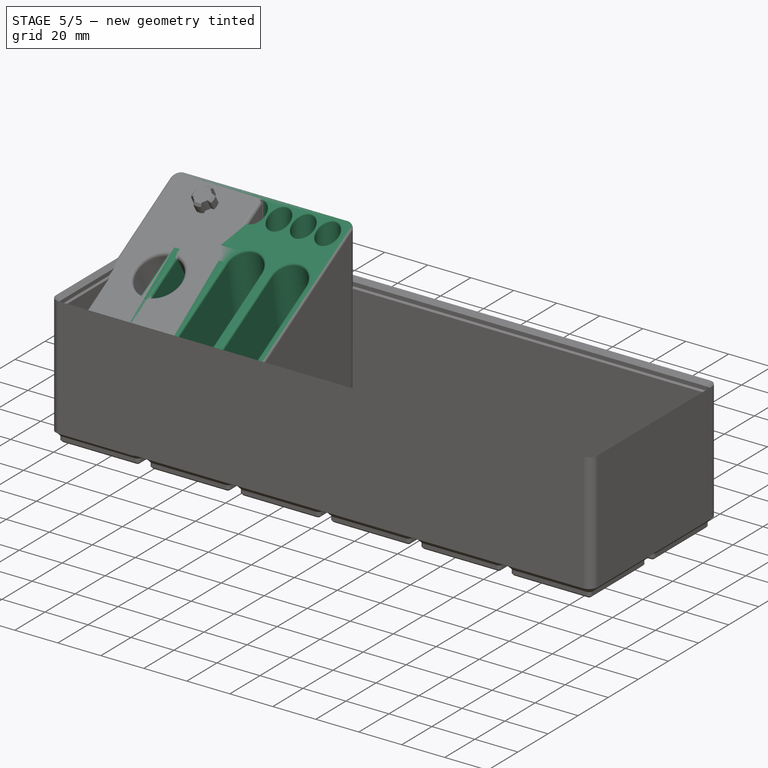
[diagram: stage 5 of 5 — iso view after this stage's code; geometry added in this stage tinted green]
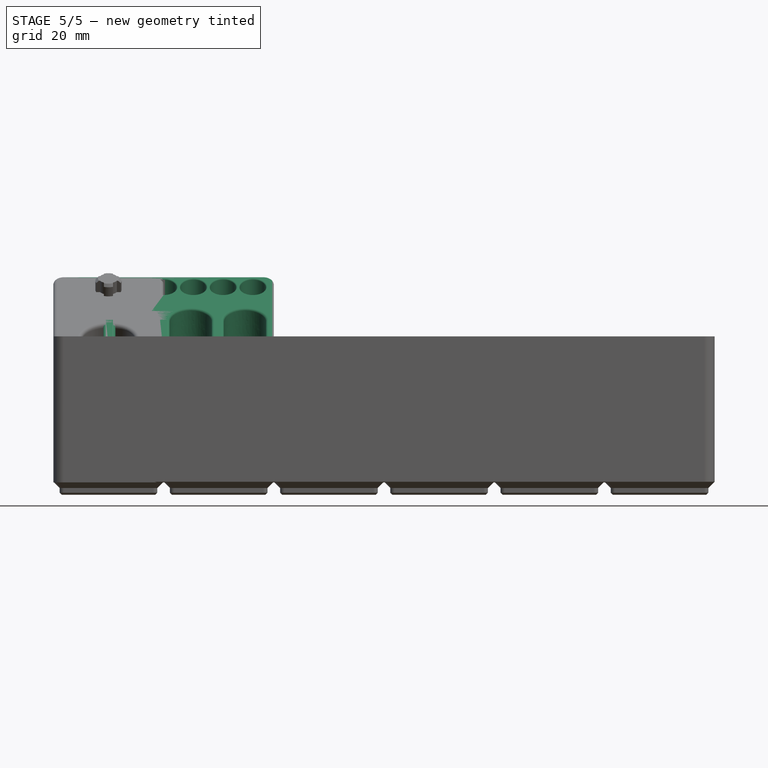
[diagram: stage 5 of 5 — front view after this stage's code; geometry added in this stage tinted green]
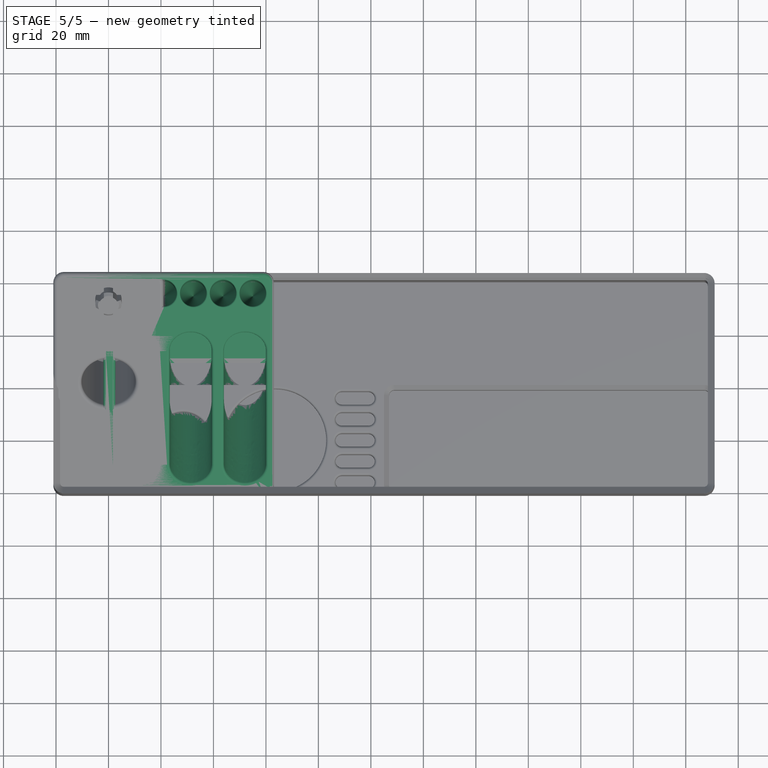
[diagram: stage 5 of 5 — top view after this stage's code; geometry added in this stage tinted green]
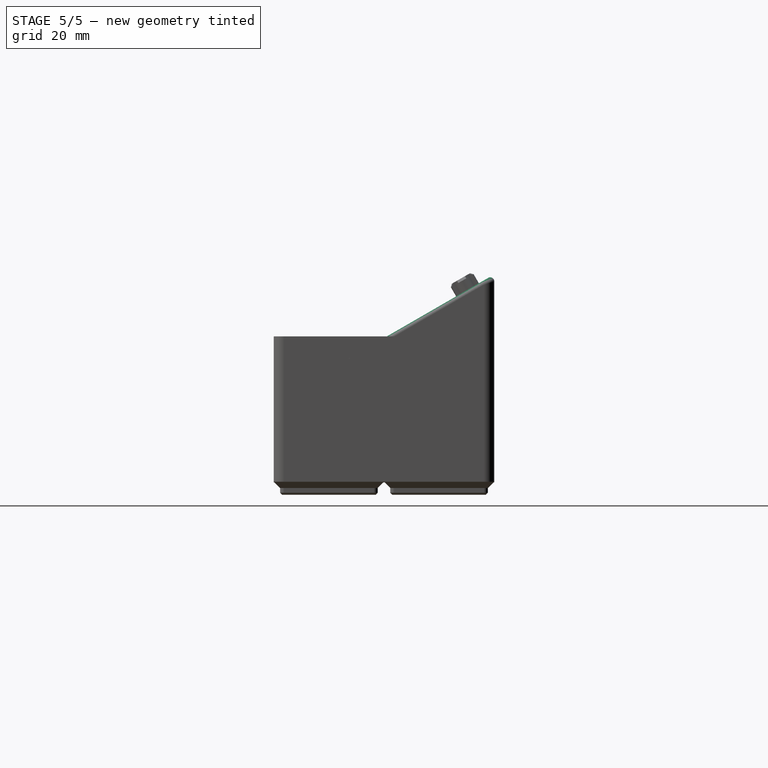
[diagram: stage 5 of 5 — right view after this stage's code; geometry added in this stage tinted green]
FEATURE [PartDesign::Hole] Hole
  BaseFeature = -> Pad003
  BaseProfileType = 7
  CustomThreadClearance = 0
  Depth = 2
  DepthType = 0
  Diameter = 6.5
  DrillForDepth = false
  DrillPoint = 1
  DrillPointAngle = 90
  HoleCutCountersinkAngle = 90
  HoleCutCustomValues = false
  HoleCutDepth = 0
  HoleCutDiameter = 0
  HoleCutType = 0
  ModelThread = false
  Profile = -> Sketch006
  Refine = true
  Reversed = true
  Suppressed = false
  Tapered = false
  TaperedAngle = 90
  ThreadClass = 0
  ThreadDepth = 2
  ThreadDepthType = 0
  ThreadDiameter = 6.5
  ThreadDirection = 0
  ThreadFit = 0
  ThreadSize = 0
  ThreadType = 0
  Threaded = false
  UseCustomThreadClearance = false
FEATURE [PartDesign::Chamfer] Chamfer
  Angle = 45
  Base = -> Hole [Edge14]
  BaseFeature = -> Hole
  ChamferType = 0
  FlipDirection = false
  Size = 0.24
  Size2 = 1
  SupportTransform = false
  Suppressed = false
  UseAllEdges = false
FEATURE [PartDesign::Draft] Draft
  Angle = 30
  Base = -> Chamfer [Face82]
  BaseFeature = -> Chamfer
  NeutralPlane = -> Chamfer [Face43]
  Reversed = true
  SupportTransform = false
  Suppressed = false
FEATURE [Sketcher::SketchObject] Sketch007
  ArcFitTolerance = 1e-06
  AttachmentSupport = -> [Draft]
  ExternalGeometry = -> [Draft]
  ExternalTypes = [0]
  FullyConstrained = true
  MakeInternals = false
  MapMode = 5
  Placement = pos=(0,-20.6231,35.7202) rot=(1,0,0;0.523599rad)
  sketch-geometry (6):
    g0: ArcOfCircle CenterX=-10 CenterY=12.1836 CenterZ=0 NormalX=0 NormalY=0 NormalZ=1 AngleXU=0 Radius=8 StartAngle=3.14159 EndAngle=6.28319
    g1: ArcOfCircle CenterX=-10 CenterY=62.1836 CenterZ=0 NormalX=0 NormalY=0 NormalZ=1 AngleXU=0 Radius=8 StartAngle=3e-16 EndAngle=3.14159
    g2: LineSegment StartX=-18 StartY=12.1836 StartZ=0 EndX=-18 EndY=62.1836 EndZ=0
    g3: LineSegment StartX=-2 StartY=12.1836 StartZ=0 EndX=-2 EndY=62.1836 EndZ=0
    g4: GeomPoint [constr] X=-10 Y=54.1836 Z=0
    g5: GeomPoint [constr] X=-10 Y=4.18356 Z=0
  constraints (14):
    c: Tangent(g0,g2) = 1.5708
    c: Tangent(g0,g3) = -1.5708
    c: Tangent(g1,g2) = 1.5708
    c: Tangent(g1,g3) = -1.5708
    c: Equal(g0,g1)
    c: Vertical(g2)
    c: DistanceX(g1,g1) = 16
    c: PointOnObject(g4,g1)
    c: PointOnObject(g5,g0)
    c: Vertical(g4,g1)
    c: Vertical(g0,g5)
    c: DistanceY(g5,g4) = 50
    c: Horizontal(g-3,g5)
    c: DistanceX(g-3,g0) = 3
FEATURE [Sketcher::SketchObject] Sketch008
  ArcFitTolerance = 1e-06
  AttachmentOffset = pos=(0,0,-50) rot=(0,0,1;0rad)
  AttachmentSupport = -> [Draft]
  ExternalGeometry = -> [Sketch007]
  ExternalTypes = [0,0]
  FullyConstrained = true
  MakeInternals = false
  MapMode = 5
  Placement = pos=(0,4.37693,-7.58107) rot=(1,0,0;0.523599rad)
  sketch-geometry (6):
    g0: ArcOfCircle CenterX=-10 CenterY=31.1836 CenterZ=0 NormalX=0 NormalY=0 NormalZ=1 AngleXU=0 Radius=8 StartAngle=3.14159 EndAngle=6.28319
    g1: ArcOfCircle CenterX=-10 CenterY=43.1836 CenterZ=0 NormalX=0 NormalY=0 NormalZ=1 AngleXU=0 Radius=8 StartAngle=0 EndAngle=3.14159
    g2: LineSegment StartX=-18 StartY=31.1836 StartZ=0 EndX=-18 EndY=43.1836 EndZ=0
    g3: LineSegment StartX=-2 StartY=31.1836 StartZ=0 EndX=-2 EndY=43.1836 EndZ=0
    g4: LineSegment [constr] StartX=-10 StartY=43.1836 StartZ=0 EndX=-10 EndY=31.1836 EndZ=0
    g5: GeomPoint [constr] X=-10 Y=37.1836 Z=0
  constraints (12):
    c: Tangent(g0,g2) = 1.5708
    c: Tangent(g0,g3) = -1.5708
    c: Tangent(g1,g2) = 1.5708
    c: Tangent(g1,g3) = -1.5708
    c: Equal(g0,g1)
    c: Distance(g0,g1) = 12
    c: Radius(g0) = 8
    c: Coincident(g4,g1)
    c: Coincident(g4,g0)
    c: Symmetric(g-3,g-4,g4)
    c: Symmetric(g-3,g-4,g5)
    c: Symmetric(g0,g1,g5)
FEATURE [PartDesign::SubtractiveLoft] SubtractiveLoft
  BaseFeature = -> Draft
  Closed = false
  Profile = -> Sketch007
  Ruled = false
  Sections = -> [Sketch008]
  Suppressed = false
FEATURE [PartDesign::LinearPattern] LinearPattern
  BaseFeature = -> SubtractiveLoft
  Direction = -> Sketch007 [H_Axis]
  Direction2 = -> Sketch007 [V_Axis]
  Length = 62
  Length2 = 100
  Mode = 0
  Mode2 = 0
  Occurrences = 4
  Occurrences2 = 1
  Offset = 20.6667
  Offset2 = 100
  Originals = -> [SubtractiveLoft]
  Reversed2 = false
  SpacingPattern = [0]
  SpacingPattern2 = [0]
  Spacings = [-1,-1,-1]
  Suppressed = false
  TransformMode = 0
FEATURE [Sketcher::SketchObject] Sketch009
  ArcFitTolerance = 1e-06
  AttachmentSupport = -> [Chamfer]
  ExternalGeometry = -> [Chamfer]
  ExternalTypes = [0,0]
  FullyConstrained = true
  MakeInternals = false
  MapMode = 5
  Placement = pos=(0,0,84) rot=(0,0,1;0rad)
  sketch-geometry (1):
    g0: Circle CenterX=-13 CenterY=55 CenterZ=0 NormalX=0 NormalY=0 NormalZ=1 AngleXU=0 Radius=5
  constraints (3):
    c: Diameter(g0) = 10
    c: DistanceY(g0,g-3) = 8
    c: DistanceX(g-4,g0) = 8
FEATURE [PartDesign::Hole] Hole001
  BaseFeature = -> LinearPattern
  BaseProfileType = 7
  CustomThreadClearance = 0
  Depth = 75
  DepthType = 0
  Diameter = 10
  DrillForDepth = true
  DrillPoint = 1
  DrillPointAngle = 16
  HoleCutCountersinkAngle = 90
  HoleCutCustomValues = false
  HoleCutDepth = 0
  HoleCutDiameter = 0
  HoleCutType = 0
  ModelThread = false
  Profile = -> Sketch009
  Suppressed = false
  Tapered = false
  TaperedAngle = 90
  ThreadClass = 0
  ThreadDepth = 75
  ThreadDepthType = 0
  ThreadDiameter = 10
  ThreadDirection = 0
  ThreadFit = 0
  ThreadSize = 0
  ThreadType = 0
  Threaded = false
  UseCustomThreadClearance = false
FEATURE [PartDesign::LinearPattern] LinearPattern001
  BaseFeature = -> Hole001
  Direction = -> Sketch009 [H_Axis]
  Direction2 = -> Sketch009 [V_Axis]
  Length = 68
  Length2 = 13
  Mode = 0
  Mode2 = 1
  Occurrences = 7
  Occurrences2 = 1
  Offset = 11.3333
  Offset2 = 13
  Originals = -> [Hole001]
  Reversed2 = true
  SpacingPattern = [0]
  SpacingPattern2 = [13]
  Spacings = [-1,-1,-1,-1,-1,-1]
  Suppressed = false
  TransformMode = 0
FEATURE [PartDesign::Fillet] Fillet
  Base = -> LinearPattern001 [Edge134]
  BaseFeature = -> LinearPattern001
  Radius = 1.5
  SupportTransform = false
  Suppressed = false
  UseAllEdges = false
FEATURE [PartDesign::Fillet] Fillet001
  Base = -> Fillet [Edge30,Edge34,Edge38,Edge42]
  BaseFeature = -> Fillet
  Radius = 1
  SupportTransform = false
  Suppressed = false
  UseAllEdges = false
FEATURE [PartDesign::Fillet] Fillet002
  Base = -> Fillet001 [Edge13,Edge14,Edge15,Edge16,Edge17,Edge18,Edge19]
  BaseFeature = -> Fillet001
  Radius = 0.5
  SupportTransform = false
  Suppressed = false
  UseAllEdges = false
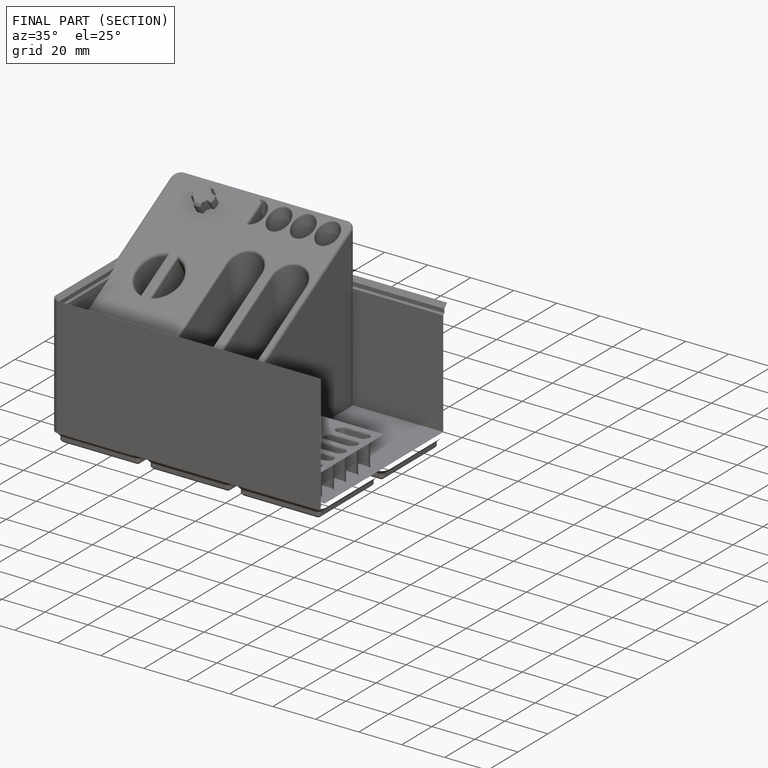
[diagram: finished part — half-section view (interior)]
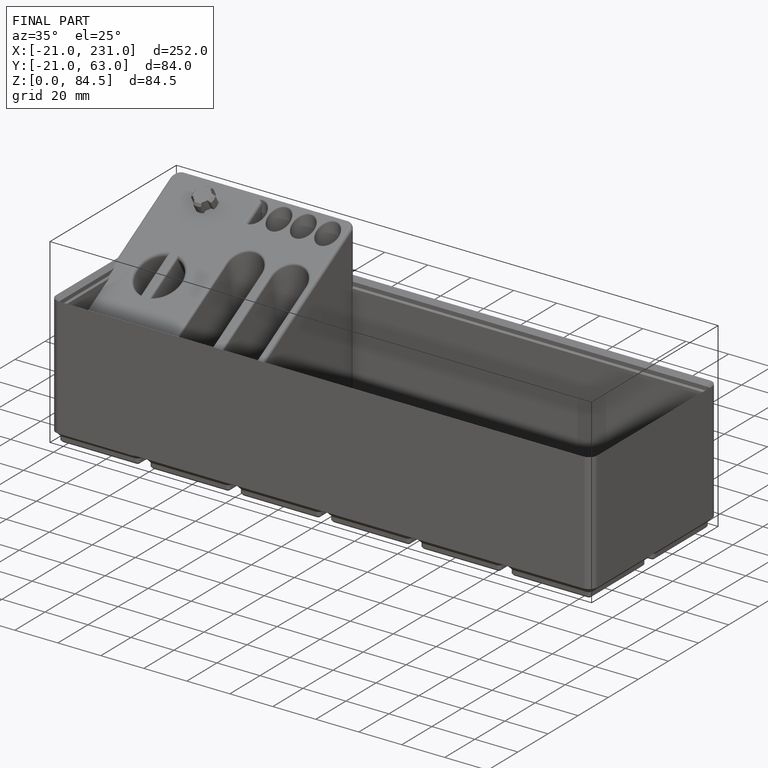
[diagram: finished part — iso view with bounding-box wireframe]
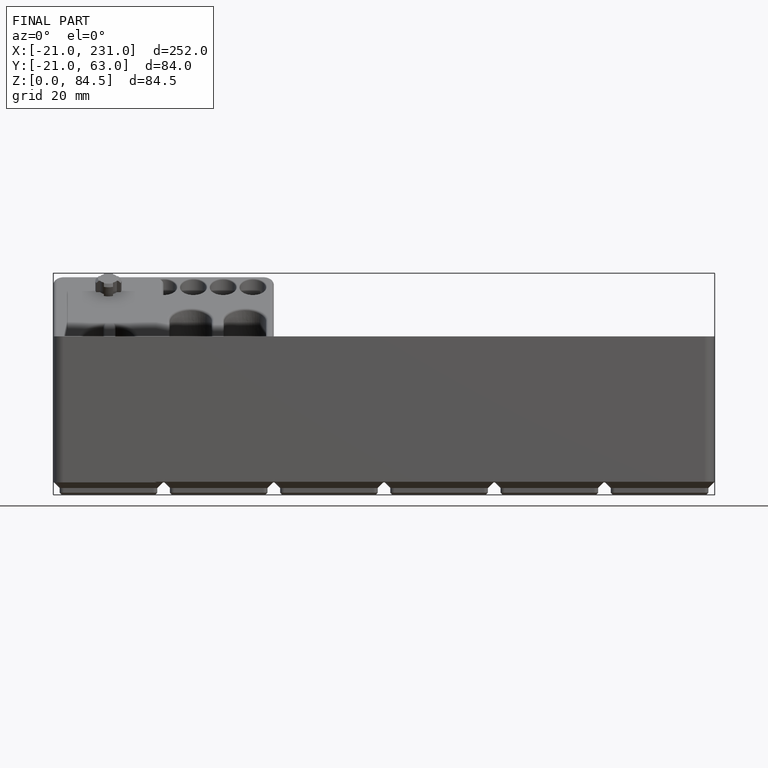
[diagram: finished part — front view with bounding-box wireframe]
